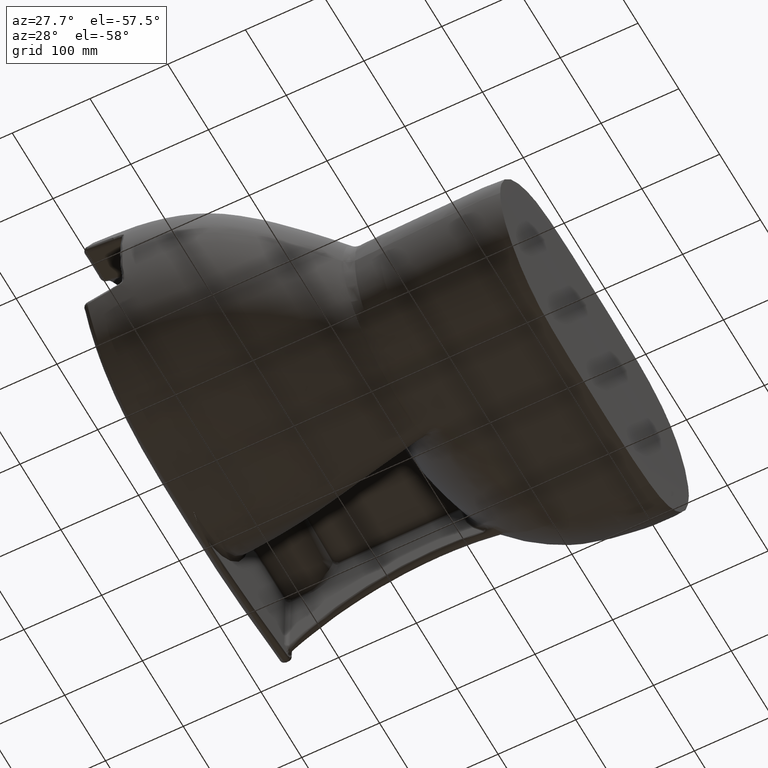
[diagram: clean part render]
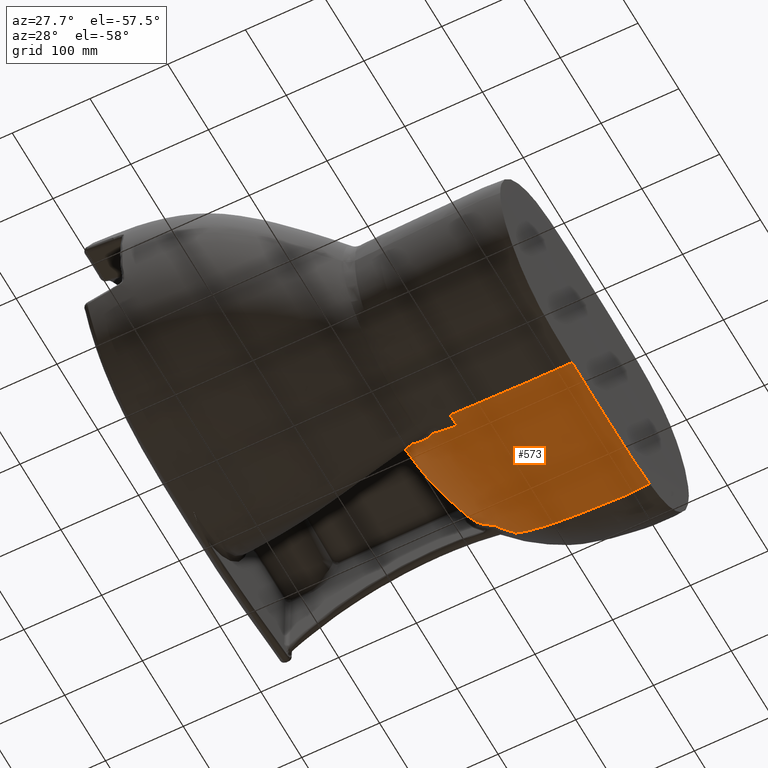
[diagram: same view with one face highlighted and labeled with its STEP entity id]
A machine part, auxiliary view. The second image highlights one B-rep face of the part: STEP entity #573.
In plain terms, the highlighted face is a freeform B-spline surface patch.
Its self-contained STEP definition (entity closure, byte-faithful):
#391=(
BOUNDED_CURVE()
B_SPLINE_CURVE(3,(#35795,#35796,#35797,#35798),.UNSPECIFIED.,.F.,.F.)
B_SPLINE_CURVE_WITH_KNOTS((4,4),(0.,1.),.UNSPECIFIED.)
CURVE()
GEOMETRIC_REPRESENTATION_ITEM()
RATIONAL_B_SPLINE_CURVE((1.,1.,1.,1.))
REPRESENTATION_ITEM('')
);
#573=ADVANCED_FACE('',(#1049),#817,.T.);
#817=B_SPLINE_SURFACE_WITH_KNOTS('',3,3,((#35799,#35800,#35801,#35802,#35803,
#35804,#35805,#35806,#35807,#35808,#35809,#35810,#35811,#35812,#35813,#35814,
#35815,#35816,#35817,#35818,#35819,#35820),(#35821,#35822,#35823,#35824,
#35825,#35826,#35827,#35828,#35829,#35830,#35831,#35832,#35833,#35834,#35835,
#35836,#35837,#35838,#35839,#35840,#35841,#35842),(#35843,#35844,#35845,
#35846,#35847,#35848,#35849,#35850,#35851,#35852,#35853,#35854,#35855,#35856,
#35857,#35858,#35859,#35860,#35861,#35862,#35863,#35864),(#35865,#35866,
#35867,#35868,#35869,#35870,#35871,#35872,#35873,#35874,#35875,#35876,#35877,
#35878,#35879,#35880,#35881,#35882,#35883,#35884,#35885,#35886),(#35887,
#35888,#35889,#35890,#35891,#35892,#35893,#35894,#35895,#35896,#35897,#35898,
#35899,#35900,#35901,#35902,#35903,#35904,#35905,#35906,#35907,#35908),
(#35909,#35910,#35911,#35912,#35913,#35914,#35915,#35916,#35917,#35918,
#35919,#35920,#35921,#35922,#35923,#35924,#35925,#35926,#35927,#35928,#35929,
#35930),(#35931,#35932,#35933,#35934,#35935,#35936,#35937,#35938,#35939,
#35940,#35941,#35942,#35943,#35944,#35945,#35946,#35947,#35948,#35949,#35950,
#35951,#35952),(#35953,#35954,#35955,#35956,#35957,#35958,#35959,#35960,
#35961,#35962,#35963,#35964,#35965,#35966,#35967,#35968,#35969,#35970,#35971,
#35972,#35973,#35974),(#35975,#35976,#35977,#35978,#35979,#35980,#35981,
#35982,#35983,#35984,#35985,#35986,#35987,#35988,#35989,#35990,#35991,#35992,
#35993,#35994,#35995,#35996),(#35997,#35998,#35999,#36000,#36001,#36002,
#36003,#36004,#36005,#36006,#36007,#36008,#36009,#36010,#36011,#36012,#36013,
#36014,#36015,#36016,#36017,#36018),(#36019,#36020,#36021,#36022,#36023,
#36024,#36025,#36026,#36027,#36028,#36029,#36030,#36031,#36032,#36033,#36034,
#36035,#36036,#36037,#36038,#36039,#36040),(#36041,#36042,#36043,#36044,
#36045,#36046,#36047,#36048,#36049,#36050,#36051,#36052,#36053,#36054,#36055,
#36056,#36057,#36058,#36059,#36060,#36061,#36062),(#36063,#36064,#36065,
#36066,#36067,#36068,#36069,#36070,#36071,#36072,#36073,#36074,#36075,#36076,
#36077,#36078,#36079,#36080,#36081,#36082,#36083,#36084),(#36085,#36086,
#36087,#36088,#36089,#36090,#36091,#36092,#36093,#36094,#36095,#36096,#36097,
#36098,#36099,#36100,#36101,#36102,#36103,#36104,#36105,#36106),(#36107,
#36108,#36109,#36110,#36111,#36112,#36113,#36114,#36115,#36116,#36117,#36118,
#36119,#36120,#36121,#36122,#36123,#36124,#36125,#36126,#36127,#36128),
(#36129,#36130,#36131,#36132,#36133,#36134,#36135,#36136,#36137,#36138,
#36139,#36140,#36141,#36142,#36143,#36144,#36145,#36146,#36147,#36148,#36149,
#36150),(#36151,#36152,#36153,#36154,#36155,#36156,#36157,#36158,#36159,
#36160,#36161,#36162,#36163,#36164,#36165,#36166,#36167,#36168,#36169,#36170,
#36171,#36172),(#36173,#36174,#36175,#36176,#36177,#36178,#36179,#36180,
#36181,#36182,#36183,#36184,#36185,#36186,#36187,#36188,#36189,#36190,#36191,
#36192,#36193,#36194),(#36195,#36196,#36197,#36198,#36199,#36200,#36201,
#36202,#36203,#36204,#36205,#36206,#36207,#36208,#36209,#36210,#36211,#36212,
#36213,#36214,#36215,#36216),(#36217,#36218,#36219,#36220,#36221,#36222,
#36223,#36224,#36225,#36226,#36227,#36228,#36229,#36230,#36231,#36232,#36233,
#36234,#36235,#36236,#36237,#36238),(#36239,#36240,#36241,#36242,#36243,
#36244,#36245,#36246,#36247,#36248,#36249,#36250,#36251,#36252,#36253,#36254,
#36255,#36256,#36257,#36258,#36259,#36260),(#36261,#36262,#36263,#36264,
#36265,#36266,#36267,#36268,#36269,#36270,#36271,#36272,#36273,#36274,#36275,
#36276,#36277,#36278,#36279,#36280,#36281,#36282),(#36283,#36284,#36285,
#36286,#36287,#36288,#36289,#36290,#36291,#36292,#36293,#36294,#36295,#36296,
#36297,#36298,#36299,#36300,#36301,#36302,#36303,#36304),(#36305,#36306,
#36307,#36308,#36309,#36310,#36311,#36312,#36313,#36314,#36315,#36316,#36317,
#36318,#36319,#36320,#36321,#36322,#36323,#36324,#36325,#36326),(#36327,
#36328,#36329,#36330,#36331,#36332,#36333,#36334,#36335,#36336,#36337,#36338,
#36339,#36340,#36341,#36342,#36343,#36344,#36345,#36346,#36347,#36348),
(#36349,#36350,#36351,#36352,#36353,#36354,#36355,#36356,#36357,#36358,
#36359,#36360,#36361,#36362,#36363,#36364,#36365,#36366,#36367,#36368,#36369,
#36370),(#36371,#36372,#36373,#36374,#36375,#36376,#36377,#36378,#36379,
#36380,#36381,#36382,#36383,#36384,#36385,#36386,#36387,#36388,#36389,#36390,
#36391,#36392),(#36393,#36394,#36395,#36396,#36397,#36398,#36399,#36400,
#36401,#36402,#36403,#36404,#36405,#36406,#36407,#36408,#36409,#36410,#36411,
#36412,#36413,#36414),(#36415,#36416,#36417,#36418,#36419,#36420,#36421,
#36422,#36423,#36424,#36425,#36426,#36427,#36428,#36429,#36430,#36431,#36432,
#36433,#36434,#36435,#36436),(#36437,#36438,#36439,#36440,#36441,#36442,
#36443,#36444,#36445,#36446,#36447,#36448,#36449,#36450,#36451,#36452,#36453,
#36454,#36455,#36456,#36457,#36458),(#36459,#36460,#36461,#36462,#36463,
#36464,#36465,#36466,#36467,#36468,#36469,#36470,#36471,#36472,#36473,#36474,
#36475,#36476,#36477,#36478,#36479,#36480),(#36481,#36482,#36483,#36484,
#36485,#36486,#36487,#36488,#36489,#36490,#36491,#36492,#36493,#36494,#36495,
#36496,#36497,#36498,#36499,#36500,#36501,#36502),(#36503,#36504,#36505,
#36506,#36507,#36508,#36509,#36510,#36511,#36512,#36513,#36514,#36515,#36516,
#36517,#36518,#36519,#36520,#36521,#36522,#36523,#36524),(#36525,#36526,
#36527,#36528,#36529,#36530,#36531,#36532,#36533,#36534,#36535,#36536,#36537,
#36538,#36539,#36540,#36541,#36542,#36543,#36544,#36545,#36546),(#36547,
#36548,#36549,#36550,#36551,#36552,#36553,#36554,#36555,#36556,#36557,#36558,
#36559,#36560,#36561,#36562,#36563,#36564,#36565,#36566,#36567,#36568)),
 .UNSPECIFIED.,.F.,.F.,.F.,(4,1,1,1,1,1,1,1,1,1,1,1,1,1,1,1,1,1,1,1,1,1,
1,1,1,1,1,1,1,1,1,1,4),(4,2,1,1,1,1,1,1,1,1,1,1,1,1,1,1,2,4),(0.,2.69529595739972E-006,
0.0313048487025693,0.0469559254058753,0.0626070021091813,0.0939091555157932,
0.109560232219099,0.125211308922405,0.156513462329017,0.187815615735629,
0.219117769142241,0.250419922548853,0.281722075955465,0.313024229362077,
0.375628536175301,0.438232842988525,0.45388391969183,0.469534996395136,
0.485186073098442,0.500837149801748,0.563441456614972,0.626045763428196,
0.68865007024142,0.719952223648032,0.751254377054644,0.782556530461256,
0.813858683867868,0.876462990681092,0.907765144087703,0.939067297494315,
0.954718374197621,0.970369450900927,1.),(0.,0.00592912738009182,0.129446870007045,
0.191205741320522,0.252964612633998,0.314723483947475,0.376482355260951,
0.438241226574428,0.453680944402797,0.469120662231166,0.500000097887905,
0.530879533544643,0.561758969201381,0.623517840514858,0.747035583141811,
0.870553325768764,0.994071068395717,1.),.UNSPECIFIED.);
#1049=FACE_OUTER_BOUND('',#1346,.T.);
#1346=EDGE_LOOP('',(#2233,#2234,#2235,#2236,#2237,#2238,#2239,#2240,#2241,
#2242,#2243,#2244,#2245,#2246,#2247,#2248,#2249,#2250,#2251,#2252,#2253,
#2254));
#2233=ORIENTED_EDGE('',*,*,#3820,.F.);
#2234=ORIENTED_EDGE('',*,*,#3696,.T.);
#2235=ORIENTED_EDGE('',*,*,#3665,.T.);
#2236=ORIENTED_EDGE('',*,*,#3666,.T.);
#2237=ORIENTED_EDGE('',*,*,#3668,.T.);
#2238=ORIENTED_EDGE('',*,*,#3670,.T.);
#2239=ORIENTED_EDGE('',*,*,#3671,.T.);
#2240=ORIENTED_EDGE('',*,*,#3676,.T.);
#2241=ORIENTED_EDGE('',*,*,#3677,.T.);
#2242=ORIENTED_EDGE('',*,*,#3722,.T.);
#2243=ORIENTED_EDGE('',*,*,#3682,.T.);
#2244=ORIENTED_EDGE('',*,*,#3686,.T.);
#2245=ORIENTED_EDGE('',*,*,#3688,.T.);
#2246=ORIENTED_EDGE('',*,*,#3690,.T.);
#2247=ORIENTED_EDGE('',*,*,#3691,.T.);
#2248=ORIENTED_EDGE('',*,*,#3711,.T.);
#2249=ORIENTED_EDGE('',*,*,#3710,.T.);
#2250=ORIENTED_EDGE('',*,*,#3709,.T.);
#2251=ORIENTED_EDGE('',*,*,#3706,.T.);
#2252=ORIENTED_EDGE('',*,*,#3705,.T.);
#2253=ORIENTED_EDGE('',*,*,#3693,.T.);
#2254=ORIENTED_EDGE('',*,*,#3821,.F.);
#3040=VERTEX_POINT('',#23099);
#3042=VERTEX_POINT('',#23127);
#3047=VERTEX_POINT('',#23292);
#3076=VERTEX_POINT('',#25353);
#3078=VERTEX_POINT('',#25899);
#3130=VERTEX_POINT('',#29516);
#3131=VERTEX_POINT('',#29599);
#3132=VERTEX_POINT('',#29606);
#3136=VERTEX_POINT('',#29706);
#3139=VERTEX_POINT('',#29816);
#3142=VERTEX_POINT('',#30384);
#3143=VERTEX_POINT('',#30500);
#3144=VERTEX_POINT('',#30746);
#3145=VERTEX_POINT('',#31109);
#3146=VERTEX_POINT('',#31273);
#3147=VERTEX_POINT('',#31274);
#3149=VERTEX_POINT('',#31364);
#3155=VERTEX_POINT('',#31540);
#3156=VERTEX_POINT('',#31545);
#3158=VERTEX_POINT('',#31680);
#3159=VERTEX_POINT('',#31685);
#3224=VERTEX_POINT('',#35794);
#3665=EDGE_CURVE('',#3047,#3040,#4369,.T.);
#3666=EDGE_CURVE('',#3040,#3130,#4370,.T.);
#3668=EDGE_CURVE('',#3130,#3131,#4372,.T.);
#3670=EDGE_CURVE('',#3131,#3132,#4374,.T.);
#3671=EDGE_CURVE('',#3132,#3042,#4375,.T.);
#3676=EDGE_CURVE('',#3042,#3136,#4378,.T.);
#3677=EDGE_CURVE('',#3136,#3078,#4379,.T.);
#3682=EDGE_CURVE('',#3076,#3139,#4384,.T.);
#3686=EDGE_CURVE('',#3139,#3142,#4388,.T.);
#3688=EDGE_CURVE('',#3142,#3143,#4390,.T.);
#3690=EDGE_CURVE('',#3143,#3144,#4392,.T.);
#3691=EDGE_CURVE('',#3144,#3145,#4393,.T.);
#3693=EDGE_CURVE('',#3146,#3147,#4395,.T.);
#3696=EDGE_CURVE('',#3149,#3047,#4397,.T.);
#3705=EDGE_CURVE('',#3155,#3146,#4404,.T.);
#3706=EDGE_CURVE('',#3156,#3155,#4405,.T.);
#3709=EDGE_CURVE('',#3158,#3156,#4408,.T.);
#3710=EDGE_CURVE('',#3159,#3158,#4409,.T.);
#3711=EDGE_CURVE('',#3145,#3159,#4410,.T.);
#3722=EDGE_CURVE('',#3078,#3076,#4418,.T.);
#3820=EDGE_CURVE('',#3149,#3224,#4484,.T.);
#3821=EDGE_CURVE('',#3224,#3147,#391,.T.);
#4369=B_SPLINE_CURVE_WITH_KNOTS('',3,(#29366,#29367,#29368,#29369,#29370,
#29371,#29372,#29373,#29374,#29375,#29376,#29377,#29378,#29379),
 .UNSPECIFIED.,.F.,.F.,(4,2,2,2,2,2,4),(0.,0.249999999999998,0.374999999999997,
0.437499999999997,0.499999999999996,0.749999999999998,1.),.UNSPECIFIED.);
#4370=B_SPLINE_CURVE_WITH_KNOTS('',3,(#29512,#29513,#29514,#29515),
 .UNSPECIFIED.,.F.,.F.,(4,4),(0.,1.),.UNSPECIFIED.);
#4372=B_SPLINE_CURVE_WITH_KNOTS('',3,(#29595,#29596,#29597,#29598),
 .UNSPECIFIED.,.F.,.F.,(4,4),(0.,1.),.UNSPECIFIED.);
#4374=B_SPLINE_CURVE_WITH_KNOTS('',3,(#29607,#29608,#29609,#29610),
 .UNSPECIFIED.,.F.,.F.,(4,4),(0.,1.),.UNSPECIFIED.);
#4375=B_SPLINE_CURVE_WITH_KNOTS('',3,(#29659,#29660,#29661,#29662),
 .UNSPECIFIED.,.F.,.F.,(4,4),(0.,1.),.UNSPECIFIED.);
#4378=B_SPLINE_CURVE_WITH_KNOTS('',3,(#29707,#29708,#29709,#29710,#29711,
#29712,#29713,#29714,#29715,#29716,#29717,#29718,#29719,#29720,#29721,#29722,
#29723,#29724,#29725,#29726,#29727,#29728,#29729,#29730,#29731,#29732,#29733,
#29734,#29735,#29736,#29737,#29738,#29739,#29740,#29741,#29742,#29743,#29744,
#29745,#29746,#29747,#29748,#29749),.UNSPECIFIED.,.F.,.F.,(4,2,2,2,1,2,
2,2,2,2,2,1,1,1,2,2,2,2,2,2,1,2,2,4),(0.,0.250000000000054,0.37500000000008,
0.437500000000095,0.468750000000101,0.484375000000104,0.500000000000106,
0.625000000000119,0.687500000000128,0.718750000000134,0.73437500000014,
0.74218750000014,0.746093750000138,0.748046875000137,0.749023437500134,
0.750000000000131,0.812499999999967,0.843749999999884,0.859374999999842,
0.867187499999815,0.871093749999794,0.873046874999795,0.874999999999797,
1.),.UNSPECIFIED.);
#4379=B_SPLINE_CURVE_WITH_KNOTS('',3,(#29751,#29752,#29753,#29754),
 .UNSPECIFIED.,.F.,.F.,(4,4),(0.,1.),.UNSPECIFIED.);
#4384=B_SPLINE_CURVE_WITH_KNOTS('',3,(#29817,#29818,#29819,#29820,#29821,
#29822,#29823,#29824,#29825,#29826,#29827,#29828,#29829,#29830,#29831,#29832,
#29833,#29834,#29835,#29836),.UNSPECIFIED.,.F.,.F.,(4,2,2,2,2,2,2,2,2,4),
(0.,0.125,0.1875,0.25,0.375,0.5,0.625,0.75,0.875,1.),.UNSPECIFIED.);
#4388=B_SPLINE_CURVE_WITH_KNOTS('',3,(#30385,#30386,#30387,#30388),
 .UNSPECIFIED.,.F.,.F.,(4,4),(0.,1.),.UNSPECIFIED.);
#4390=B_SPLINE_CURVE_WITH_KNOTS('',3,(#30501,#30502,#30503,#30504),
 .UNSPECIFIED.,.F.,.F.,(4,4),(0.,1.),.UNSPECIFIED.);
#4392=B_SPLINE_CURVE_WITH_KNOTS('',3,(#30747,#30748,#30749,#30750),
 .UNSPECIFIED.,.F.,.F.,(4,4),(0.,1.),.UNSPECIFIED.);
#4393=B_SPLINE_CURVE_WITH_KNOTS('',3,(#31087,#31088,#31089,#31090,#31091,
#31092,#31093,#31094,#31095,#31096,#31097,#31098,#31099,#31100,#31101,#31102,
#31103,#31104,#31105,#31106,#31107,#31108),.UNSPECIFIED.,.F.,.F.,(4,2,2,
2,2,2,2,2,2,2,4),(0.,0.015625,0.03125,0.0624999999999999,0.125,0.25,0.5,
0.625,0.75,0.875,1.),.UNSPECIFIED.);
#4395=B_SPLINE_CURVE_WITH_KNOTS('',3,(#31253,#31254,#31255,#31256,#31257,
#31258,#31259,#31260,#31261,#31262,#31263,#31264,#31265,#31266,#31267,#31268,
#31269,#31270,#31271,#31272),.UNSPECIFIED.,.F.,.F.,(4,2,2,2,2,2,1,1,2,2,
4),(0.,0.12499999999999,0.187499999999988,0.218749999999986,0.234374999999986,
0.249999999999986,0.374999999999991,0.43749999999999,0.46874999999999,0.49999999999999,
1.),.UNSPECIFIED.);
#4397=B_SPLINE_CURVE_WITH_KNOTS('',3,(#31334,#31335,#31336,#31337,#31338,
#31339,#31340,#31341,#31342,#31343,#31344,#31345,#31346,#31347,#31348,#31349,
#31350,#31351,#31352,#31353,#31354,#31355,#31356,#31357,#31358,#31359,#31360,
#31361,#31362,#31363),.UNSPECIFIED.,.F.,.F.,(4,2,2,2,2,2,2,2,2,2,2,2,2,
2,4),(0.,0.124999999999997,0.187499999999995,0.203124999999995,0.210937499999995,
0.218749999999995,0.249999999999996,0.374999999999997,0.437499999999998,
0.468749999999998,0.484374999999998,0.492187499999998,0.499999999999998,
0.749999999999999,1.),.UNSPECIFIED.);
#4404=B_SPLINE_CURVE_WITH_KNOTS('',3,(#31534,#31535,#31536,#31537,#31538,
#31539),.UNSPECIFIED.,.F.,.F.,(4,2,4),(0.,0.5,1.),.UNSPECIFIED.);
#4405=B_SPLINE_CURVE_WITH_KNOTS('',3,(#31541,#31542,#31543,#31544),
 .UNSPECIFIED.,.F.,.F.,(4,4),(0.,1.),.UNSPECIFIED.);
#4408=B_SPLINE_CURVE_WITH_KNOTS('',3,(#31676,#31677,#31678,#31679),
 .UNSPECIFIED.,.F.,.F.,(4,4),(0.,1.),.UNSPECIFIED.);
#4409=B_SPLINE_CURVE_WITH_KNOTS('',3,(#31681,#31682,#31683,#31684),
 .UNSPECIFIED.,.F.,.F.,(4,4),(0.,1.),.UNSPECIFIED.);
#4410=B_SPLINE_CURVE_WITH_KNOTS('',3,(#31686,#31687,#31688,#31689,#31690,
#31691,#31692,#31693,#31694,#31695,#31696,#31697,#31698,#31699,#31700),
 .UNSPECIFIED.,.F.,.F.,(4,1,1,1,1,1,1,1,1,1,1,1,4),(0.,0.0601588004681042,
0.100640830251247,0.14112286003439,0.222086919600676,0.303050979166959,
0.464979098299531,0.545943157865817,0.626907217432103,0.707871276998389,
0.788835336564675,0.950763455697246,1.),.UNSPECIFIED.);
#4418=B_SPLINE_CURVE_WITH_KNOTS('',3,(#32778,#32779,#32780,#32781,#32782,
#32783),.UNSPECIFIED.,.F.,.F.,(4,2,4),(0.,0.999826036956275,1.),
 .UNSPECIFIED.);
#4484=B_SPLINE_CURVE_WITH_KNOTS('',3,(#35778,#35779,#35780,#35781,#35782,
#35783,#35784,#35785,#35786,#35787,#35788,#35789,#35790,#35791,#35792,#35793),
 .UNSPECIFIED.,.F.,.F.,(4,2,2,2,2,2,2,4),(0.,0.125,0.25,0.375,0.499999999999999,
0.749999999999999,0.875,1.),.UNSPECIFIED.);
#23099=CARTESIAN_POINT('',(-189.296443436505,-17.8249144784263,-890.449250161374));
#23127=CARTESIAN_POINT('',(-187.830083627952,-1.35257541668294,-885.378313322443));
#23292=CARTESIAN_POINT('',(-232.47368738606,-20.0024757136374,-817.248328237267));
#25353=CARTESIAN_POINT('',(-222.718824431025,0.259401134505902,-807.904962848657));
#25899=CARTESIAN_POINT('',(-222.88426220293,-0.00447027724423187,-807.904962913795));
#29366=CARTESIAN_POINT('',(-232.472296391965,-20.0030844914909,-817.248094960772));
#29367=CARTESIAN_POINT('',(-230.893488626043,-19.7150403840427,-826.023565478697));
#29368=CARTESIAN_POINT('',(-228.895204795993,-19.4760716577695,-833.842490597829));
#29369=CARTESIAN_POINT('',(-225.424730110019,-19.1242780742411,-844.174523818816));
#29370=CARTESIAN_POINT('',(-224.145334896573,-19.0232877594549,-847.372530809562));
#29371=CARTESIAN_POINT('',(-222.124252866668,-18.8895909238042,-851.814648067658));
#29372=CARTESIAN_POINT('',(-221.434124960111,-18.8478351076173,-853.236477782883));
#29373=CARTESIAN_POINT('',(-220.037445297889,-18.7679156546577,-855.967174957154));
#29374=CARTESIAN_POINT('',(-219.316054318377,-18.7289491039003,-857.302538171946));
#29375=CARTESIAN_POINT('',(-215.851463261184,-18.5477766721366,-863.444019185199));
#29376=CARTESIAN_POINT('',(-212.263862203149,-18.3976176163239,-868.82663738976));
#29377=CARTESIAN_POINT('',(-202.684249942417,-18.1090076235298,-879.763046987892));
#29378=CARTESIAN_POINT('',(-196.745724187156,-17.9628291691335,-885.350413056943));
#29379=CARTESIAN_POINT('',(-189.296442146999,-17.8249150112663,-890.449248291728));
#29512=CARTESIAN_POINT('',(-189.296442146989,-17.8249150112741,-890.449248291737));
#29513=CARTESIAN_POINT('',(-184.682738873837,-10.4962612618135,-891.542833989022));
#29514=CARTESIAN_POINT('',(-179.046542053041,-5.13256850082646,-893.071699196391));
#29515=CARTESIAN_POINT('',(-171.70544433936,-1.53074724564746,-895.345317002544));
#29516=CARTESIAN_POINT('',(-171.705444881607,-1.53074547053859,-895.345316051335));
#29595=CARTESIAN_POINT('',(-171.705444341619,-1.53074724675652,-895.345317001844));
#29596=CARTESIAN_POINT('',(-173.357150788153,-1.51568155698356,-894.514352019136));
#29597=CARTESIAN_POINT('',(-174.977213425796,-1.50062733384049,-893.648562055245));
#29598=CARTESIAN_POINT('',(-176.564607718852,-1.48542287781211,-892.748850191332));
#29599=CARTESIAN_POINT('',(-176.569166698965,-1.48536832140594,-892.746285285388));
#29606=CARTESIAN_POINT('',(-185.93187482027,-1.37737190131328,-886.77100359234));
#29607=CARTESIAN_POINT('',(-176.564607718852,-1.48542287781211,-892.748850191332));
#29608=CARTESIAN_POINT('',(-179.828390266626,-1.44910546801244,-890.896906937432));
#29609=CARTESIAN_POINT('',(-182.955483457355,-1.41174504342765,-888.902021055838));
#29610=CARTESIAN_POINT('',(-185.931017305909,-1.3736421277615,-886.769879254742));
#29659=CARTESIAN_POINT('',(-185.931017305909,-1.3736421277615,-886.769879254742));
#29660=CARTESIAN_POINT('',(-186.57054116128,-1.3648821653915,-886.311358229584));
#29661=CARTESIAN_POINT('',(-187.202964709083,-1.35611612294839,-885.846457693835));
#29662=CARTESIAN_POINT('',(-187.82805345764,-1.34737198097005,-885.375201151949));
#29706=CARTESIAN_POINT('',(-222.829426937587,-0.092627071850432,-812.955467360586));
#29707=CARTESIAN_POINT('',(-187.82805345764,-1.34737198097005,-885.375201151949));
#29708=CARTESIAN_POINT('',(-193.416730728697,-1.26829319799702,-881.161448169733));
#29709=CARTESIAN_POINT('',(-198.429359101721,-1.18866977147612,-876.374029796946));
#29710=CARTESIAN_POINT('',(-204.979551863596,-1.05829727731858,-868.519370519263));
#29711=CARTESIAN_POINT('',(-207.00546848928,-1.01233503876229,-865.792946282129));
#29712=CARTESIAN_POINT('',(-209.758982274943,-0.941872451341492,-861.546654685735));
#29713=CARTESIAN_POINT('',(-210.627695133689,-0.918281597702938,-860.104319734432));
#29714=CARTESIAN_POINT('',(-211.853155532473,-0.882494646451748,-857.902603561303));
#29715=CARTESIAN_POINT('',(-212.447150575272,-0.864409200883442,-856.792551495207));
#29716=CARTESIAN_POINT('',(-213.014857565875,-0.845637342685997,-855.670493187471));
#29717=CARTESIAN_POINT('',(-213.387691142554,-0.832925454606199,-854.919986924221));
#29718=CARTESIAN_POINT('',(-213.547391858162,-0.827339620951188,-854.593389187724));
#29719=CARTESIAN_POINT('',(-215.390396858409,-0.760339707984317,-850.745806321119));
#29720=CARTESIAN_POINT('',(-216.719612061377,-0.693299355866927,-847.439857753398));
#29721=CARTESIAN_POINT('',(-218.305253432239,-0.60640067570831,-842.700639074794));
#29722=CARTESIAN_POINT('',(-218.766401758523,-0.579389371665952,-841.157434313771));
#29723=CARTESIAN_POINT('',(-219.368408697796,-0.542617700710983,-838.902948199012));
#29724=CARTESIAN_POINT('',(-219.553916534957,-0.531036280568502,-838.161446743005));
#29725=CARTESIAN_POINT('',(-219.812009933461,-0.514427391225042,-837.065032618652));
#29726=CARTESIAN_POINT('',(-219.894758808151,-0.508996642468779,-836.702218175735));
#29727=CARTESIAN_POINT('',(-220.014507892681,-0.50091361837393,-836.162133491195));
#29728=CARTESIAN_POINT('',(-220.073288244802,-0.496888027085403,-835.893125191111));
#29729=CARTESIAN_POINT('',(-220.140064045507,-0.492200048697455,-835.581122803666));
#29730=CARTESIAN_POINT('',(-220.173015341228,-0.489855891461477,-835.425585495779));
#29731=CARTESIAN_POINT('',(-220.187045225403,-0.488850972272929,-835.359026449625));
#29732=CARTESIAN_POINT('',(-220.196378175684,-0.488180936985179,-835.314675973572));
#29733=CARTESIAN_POINT('',(-220.192628522978,-0.488452172762236,-835.332590951826));
#29734=CARTESIAN_POINT('',(-221.041023110504,-0.427259990253579,-831.28750441948));
#29735=CARTESIAN_POINT('',(-221.480482635762,-0.370205175279876,-828.242740471837));
#29736=CARTESIAN_POINT('',(-221.901599740567,-0.311279797598816,-825.119388160303));
#29737=CARTESIAN_POINT('',(-221.99722082199,-0.296150533341917,-824.317740671659));
#29738=CARTESIAN_POINT('',(-222.094114048092,-0.280243739432989,-823.475238936497));
#29739=CARTESIAN_POINT('',(-222.118542759746,-0.276055886993092,-823.254393889185));
#29740=CARTESIAN_POINT('',(-222.144858996482,-0.271385114973385,-823.013156928923));
#29741=CARTESIAN_POINT('',(-222.151902013159,-0.270096606921801,-822.94774942352));
#29742=CARTESIAN_POINT('',(-222.159983556646,-0.268560693661478,-822.872148681554));
#29743=CARTESIAN_POINT('',(-222.163402784618,-0.267891994005906,-822.8399759112));
#29744=CARTESIAN_POINT('',(-222.165903246054,-0.2673714867388,-822.816244914384));
#29745=CARTESIAN_POINT('',(-222.167367060415,-0.267057362402414,-822.802300224812));
#29746=CARTESIAN_POINT('',(-222.163206058537,-0.268041255560544,-822.84240664175));
#29747=CARTESIAN_POINT('',(-222.509042929122,-0.186874343591051,-819.511993079229));
#29748=CARTESIAN_POINT('',(-222.72320285024,-0.131359834890758,-816.23342299933));
#29749=CARTESIAN_POINT('',(-222.829426936873,-0.0926270722681942,-812.955467384952));
#29751=CARTESIAN_POINT('',(-222.829426940441,-0.0926270701794748,-812.955467263121));
#29752=CARTESIAN_POINT('',(-222.878753781193,-0.0637512152564042,-811.271161405621));
#29753=CARTESIAN_POINT('',(-222.896469811009,-0.0347030118069517,-809.587402800492));
#29754=CARTESIAN_POINT('',(-222.884262203518,-0.00447028010638495,-807.904968140917));
#29816=CARTESIAN_POINT('',(-61.3305709255067,0.259474251093405,-915.462741395333));
#29817=CARTESIAN_POINT('',(-222.718860973935,0.259424077906246,-807.904968009571));
#29818=CARTESIAN_POINT('',(-222.705397986725,0.259181050696003,-815.877818586838));
#29819=CARTESIAN_POINT('',(-222.001731310849,0.251212035030198,-823.836250647421));
#29820=CARTESIAN_POINT('',(-219.824796277718,0.259606903178828,-835.684207165235));
#29821=CARTESIAN_POINT('',(-218.89800019034,0.273737967587596,-839.616352354939));
#29822=CARTESIAN_POINT('',(-216.351123873401,0.264285436218507,-847.322521137863));
#29823=CARTESIAN_POINT('',(-214.771762344428,0.250934500088714,-851.10582027313));
#29824=CARTESIAN_POINT('',(-209.25089008181,0.251392123829914,-862.181387710478));
#29825=CARTESIAN_POINT('',(-204.28567684052,0.25707851047263,-869.073854306246));
#29826=CARTESIAN_POINT('',(-192.322456466372,0.267008781679192,-881.513708281299));
#29827=CARTESIAN_POINT('',(-185.228022720311,0.256658651723972,-886.970929520098));
#29828=CARTESIAN_POINT('',(-169.372003898329,0.258717047352034,-896.202489275644));
#29829=CARTESIAN_POINT('',(-160.545983149053,0.262592352983768,-899.938105127891));
#29830=CARTESIAN_POINT('',(-141.768903301089,0.259482440439762,-905.749752948805));
#29831=CARTESIAN_POINT('',(-131.865315790695,0.254930029302693,-907.845872474651));
#29832=CARTESIAN_POINT('',(-111.732560143569,0.251823194728734,-911.057228377561));
#29833=CARTESIAN_POINT('',(-101.517001936145,0.253155585124647,-912.193894624584));
#29834=CARTESIAN_POINT('',(-81.2928915464738,0.257273301068924,-914.044980378193));
#29835=CARTESIAN_POINT('',(-71.2717376904344,0.259448979432885,-914.718871863656));
#29836=CARTESIAN_POINT('',(-61.330633684826,0.259570311250168,-915.463570010786));
#30384=CARTESIAN_POINT('',(-32.5570768195825,0.259485410146986,-917.137687926939));
#30385=CARTESIAN_POINT('',(-61.3306336848259,0.259570311257963,-915.463570010785));
#30386=CARTESIAN_POINT('',(-51.7013339431453,0.259785612332583,-916.184899251227));
#30387=CARTESIAN_POINT('',(-42.1333478040512,0.259637588564099,-917.143317340859));
#30388=CARTESIAN_POINT('',(-32.5570774209526,0.259592634114093,-917.138625461608));
#30500=CARTESIAN_POINT('',(-10.4515384107355,0.25849467991742,-915.966752704918));
#30501=CARTESIAN_POINT('',(-32.5570760085957,0.259592623142343,-917.13862546217));
#30502=CARTESIAN_POINT('',(-25.1766082049619,0.25898290377838,-917.135075118548));
#30503=CARTESIAN_POINT('',(-17.8069281439721,0.258330466668946,-916.645697291528));
#30504=CARTESIAN_POINT('',(-10.4520672153245,0.257644415507822,-915.961096892972));
#30746=CARTESIAN_POINT('',(-0.0885966638408369,0.260855605747395,-914.991126266906));
#30747=CARTESIAN_POINT('',(-10.452061179703,0.257582311759422,-915.961106027731));
#30748=CARTESIAN_POINT('',(-6.99843293535141,0.257965478026181,-915.639528100447));
#30749=CARTESIAN_POINT('',(-3.54164777136665,0.258336692846189,-915.319178284235));
#30750=CARTESIAN_POINT('',(-0.0805475908090794,0.258694103464429,-914.990463345695));
#31087=CARTESIAN_POINT('',(-0.0805475908090794,0.258694103464429,-914.990463345695));
#31088=CARTESIAN_POINT('',(-0.0818619239578027,0.103167132839122,-915.020141438894));
#31089=CARTESIAN_POINT('',(-0.0820413943696389,0.0742769037382043,-915.025601548539));
#31090=CARTESIAN_POINT('',(-0.0834479364494126,-0.132807524662804,-915.064847665839));
#31091=CARTESIAN_POINT('',(-0.0841762654585105,-0.25039611726239,-915.087063359134));
#31092=CARTESIAN_POINT('',(-0.0864357531258411,-0.645330807876345,-915.161319263304));
#31093=CARTESIAN_POINT('',(-0.0880414792647178,-0.96484381593463,-915.220980702501));
#31094=CARTESIAN_POINT('',(-0.0931490909502004,-2.09236688134717,-915.428626962215));
#31095=CARTESIAN_POINT('',(-0.0969425263110958,-3.06933823119661,-915.605446241548));
#31096=CARTESIAN_POINT('',(-0.109386522291427,-6.67964442948383,-916.229843637));
#31097=CARTESIAN_POINT('',(-0.119120900171609,-9.99248937271568,-916.77277590078));
#31098=CARTESIAN_POINT('',(-0.151149770503908,-22.6827706279923,-918.533265073044));
#31099=CARTESIAN_POINT('',(-0.176671373984123,-34.8197512097923,-919.867948440711));
#31100=CARTESIAN_POINT('',(-0.208790349917826,-58.5704315937311,-921.036775530862));
#31101=CARTESIAN_POINT('',(-0.218310942111026,-67.4100031029074,-921.291571096743));
#31102=CARTESIAN_POINT('',(-0.231869110299663,-86.9167380963474,-921.790824165882));
#31103=CARTESIAN_POINT('',(-0.236077045799947,-97.585365727505,-921.997408568146));
#31104=CARTESIAN_POINT('',(-0.236032245431079,-120.753481011445,-922.296512250118));
#31105=CARTESIAN_POINT('',(-0.234509699575561,-133.251536429197,-922.45900086271));
#31106=CARTESIAN_POINT('',(-0.230301256635015,-160.078196645582,-922.565504989919));
#31107=CARTESIAN_POINT('',(-0.22720475817913,-174.407088917302,-922.50116951434));
#31108=CARTESIAN_POINT('',(-0.222952709290948,-189.641977585913,-922.069786270174));
#31109=CARTESIAN_POINT('',(-0.22441593461656,-189.643974961821,-922.069595809348));
#31253=CARTESIAN_POINT('',(-176.869362380351,-173.045940059047,-915.499546329581));
#31254=CARTESIAN_POINT('',(-177.763342608725,-173.028302477784,-915.28136518747));
#31255=CARTESIAN_POINT('',(-178.495167141254,-173.016784206233,-915.090139701182));
#31256=CARTESIAN_POINT('',(-179.350335998695,-173.008722687969,-914.861194560676));
#31257=CARTESIAN_POINT('',(-179.594970464909,-173.007571344477,-914.794450893105));
#31258=CARTESIAN_POINT('',(-179.901388771114,-173.008151171547,-914.710165426528));
#31259=CARTESIAN_POINT('',(-179.993439211553,-173.008728909642,-914.684703618332));
#31260=CARTESIAN_POINT('',(-180.11639207404,-173.010172492722,-914.650599852372));
#31261=CARTESIAN_POINT('',(-180.15485587865,-173.010749848992,-914.639913106152));
#31262=CARTESIAN_POINT('',(-180.226744078199,-173.012096923359,-914.619921327153));
#31263=CARTESIAN_POINT('',(-180.220378269143,-173.011751789234,-914.621696082183));
#31264=CARTESIAN_POINT('',(-180.856638542996,-173.029578693833,-914.444526128379));
#31265=CARTESIAN_POINT('',(-181.704522382547,-173.047714960067,-914.199833299941));
#31266=CARTESIAN_POINT('',(-182.692564464545,-173.059010149359,-913.899367215708));
#31267=CARTESIAN_POINT('',(-183.115726116852,-173.061736598369,-913.767365295798));
#31268=CARTESIAN_POINT('',(-183.397766410749,-173.063084300426,-913.678644045671));
#31269=CARTESIAN_POINT('',(-183.502666237348,-173.06347098766,-913.645465358921));
#31270=CARTESIAN_POINT('',(-186.512298264579,-173.067824361469,-912.682865361609));
#31271=CARTESIAN_POINT('',(-188.686385780444,-172.786835223268,-911.825556719819));
#31272=CARTESIAN_POINT('',(-190.214880624957,-172.220582122089,-911.157186618116));
#31273=CARTESIAN_POINT('',(-176.870997913334,-173.0850646745,-915.50249271337));
#31274=CARTESIAN_POINT('',(-190.214880620631,-172.220582123133,-911.157186607338));
#31334=CARTESIAN_POINT('',(-252.190291859832,-138.916596544301,-817.428024041807));
#31335=CARTESIAN_POINT('',(-252.135593737539,-133.289703137749,-817.363044510108));
#31336=CARTESIAN_POINT('',(-252.066083901411,-127.997880049238,-817.302032025371));
#31337=CARTESIAN_POINT('',(-251.958196514937,-120.562816835832,-817.215908869599));
#31338=CARTESIAN_POINT('',(-251.921608730878,-118.168239371336,-817.188109642075));
#31339=CARTESIAN_POINT('',(-251.876027789256,-115.279747096022,-817.154495008817));
#31340=CARTESIAN_POINT('',(-251.866856025853,-114.707285992685,-817.147828728808));
#31341=CARTESIAN_POINT('',(-251.852722361702,-113.856454865717,-817.137913628183));
#31342=CARTESIAN_POINT('',(-251.847948825158,-113.574154572674,-817.134622650481));
#31343=CARTESIAN_POINT('',(-251.838232514353,-113.012174838493,-817.128068728921));
#31344=CARTESIAN_POINT('',(-251.832216474952,-112.670563205209,-817.124077801574));
#31345=CARTESIAN_POINT('',(-251.798780144555,-110.845712774254,-817.10297441346));
#31346=CARTESIAN_POINT('',(-251.768614998468,-109.408016119874,-817.086867646079));
#31347=CARTESIAN_POINT('',(-251.586559158148,-102.330677344214,-817.010100892749));
#31348=CARTESIAN_POINT('',(-251.302044565015,-97.0255902354956,-816.960662924939));
#31349=CARTESIAN_POINT('',(-250.704254996928,-89.6099210397208,-816.903328415869));
#31350=CARTESIAN_POINT('',(-250.477428162229,-87.2285928182762,-816.887036695411));
#31351=CARTESIAN_POINT('',(-250.003027230565,-83.8062473505219,-816.866817723643));
#31352=CARTESIAN_POINT('',(-249.839303225885,-82.6883796242092,-816.860781902344));
#31353=CARTESIAN_POINT('',(-249.611396996291,-81.0430051157748,-816.852788703966));
#31354=CARTESIAN_POINT('',(-249.536462922125,-80.5000124035642,-816.850301100428));
#31355=CARTESIAN_POINT('',(-249.422830854869,-79.6940704559165,-816.846835837553));
#31356=CARTESIAN_POINT('',(-249.384738643344,-79.4268487570904,-816.845725109368));
#31357=CARTESIAN_POINT('',(-249.308129216422,-78.8952597432834,-816.843592558135));
#31358=CARTESIAN_POINT('',(-249.263445850658,-78.5890123447612,-816.842415079696));
#31359=CARTESIAN_POINT('',(-248.189172782852,-71.2940500440516,-816.815301856229));
#31360=CARTESIAN_POINT('',(-246.461309923015,-61.3116619779601,-816.786072701366));
#31361=CARTESIAN_POINT('',(-239.192475053715,-36.0027436918277,-816.968403371548));
#31362=CARTESIAN_POINT('',(-235.352778263792,-26.5604047652061,-817.128058938988));
#31363=CARTESIAN_POINT('',(-232.472296391965,-20.0030844914907,-817.248094960772));
#31364=CARTESIAN_POINT('',(-252.190561116696,-138.916593544536,-817.42805477906));
#31534=CARTESIAN_POINT('',(-157.078588420913,-173.003757849101,-918.22233226386));
#31535=CARTESIAN_POINT('',(-160.335604885005,-173.004767795946,-918.072542182695));
#31536=CARTESIAN_POINT('',(-163.623982407923,-173.005556351479,-917.829485032402));
#31537=CARTESIAN_POINT('',(-170.233697076436,-173.006680711264,-916.924677017664));
#31538=CARTESIAN_POINT('',(-173.554005436679,-173.007016910884,-916.300545411424));
#31539=CARTESIAN_POINT('',(-176.866869903973,-173.007057075542,-915.497088145044));
#31540=CARTESIAN_POINT('',(-157.078371666397,-173.003640039636,-918.222336343137));
#31541=CARTESIAN_POINT('',(-157.078588199054,-189.597565657079,-918.982597303805));
#31542=CARTESIAN_POINT('',(-157.078352559815,-184.064959432937,-918.754728533033));
#31543=CARTESIAN_POINT('',(-157.078352187679,-178.533795710951,-918.49894032877));
#31544=CARTESIAN_POINT('',(-157.078588420913,-173.003757849101,-918.22233226386));
#31545=CARTESIAN_POINT('',(-157.078588199413,-189.597574160315,-918.979961839349));
#31676=CARTESIAN_POINT('',(-118.193834022365,-189.597559902739,-920.057827743211));
#31677=CARTESIAN_POINT('',(-130.854391225599,-189.597565366707,-919.682187474828));
#31678=CARTESIAN_POINT('',(-143.647158036827,-189.597561646849,-919.252007517889));
#31679=CARTESIAN_POINT('',(-157.078588199054,-189.597565657079,-918.982597303805));
#31680=CARTESIAN_POINT('',(-118.193834022368,-189.597552402407,-920.057827743233));
#31681=CARTESIAN_POINT('',(-116.02171292378,-189.597541644095,-920.122118176014));
#31682=CARTESIAN_POINT('',(-116.74537663197,-189.597542942542,-920.100752904724));
#31683=CARTESIAN_POINT('',(-117.469385879401,-189.59754401111,-920.079322212157));
#31684=CARTESIAN_POINT('',(-118.19383402231,-189.597544902074,-920.057827741198));
#31685=CARTESIAN_POINT('',(-116.021696534723,-189.597550662185,-920.121553179405));
#31686=CARTESIAN_POINT('',(-0.222952709838562,-189.641977585913,-922.069786270194));
#31687=CARTESIAN_POINT('',(-2.5691497959744,-189.634494505816,-922.155693717133));
#31688=CARTESIAN_POINT('',(-6.49913784783289,-189.623701264835,-922.286044162773));
#31689=CARTESIAN_POINT('',(-12.0184052141664,-189.61228366904,-922.424762104649));
#31690=CARTESIAN_POINT('',(-18.3570993254545,-189.602407408069,-922.535238802341));
#31691=CARTESIAN_POINT('',(-26.2876580515085,-189.595643740855,-922.567986065401));
#31692=CARTESIAN_POINT('',(-38.9706578566786,-189.594748582527,-922.357722671493));
#31693=CARTESIAN_POINT('',(-51.6201128782016,-189.597461975221,-921.96375258694));
#31694=CARTESIAN_POINT('',(-64.1944705717767,-189.598082263564,-921.589874252569));
#31695=CARTESIAN_POINT('',(-73.576241489848,-189.597706020696,-921.32751473284));
#31696=CARTESIAN_POINT('',(-82.8976723503018,-189.597382927096,-921.068633029018));
#31697=CARTESIAN_POINT('',(-95.2263503765049,-189.597427811822,-920.721218621072));
#31698=CARTESIAN_POINT('',(-106.211518081529,-189.597517534115,-920.410192926676));
#31699=CARTESIAN_POINT('',(-114.164961023006,-189.597538312583,-920.176936467479));
#31700=CARTESIAN_POINT('',(-116.02171292378,-189.597541644095,-920.122118176014));
#32778=CARTESIAN_POINT('',(-222.884262202635,-0.0044702779190642,-807.904968019195));
#32779=CARTESIAN_POINT('',(-222.82920621131,0.0835219825926898,-807.904968019267));
#32780=CARTESIAN_POINT('',(-222.774082048746,0.171471508675473,-807.904968019303));
#32781=CARTESIAN_POINT('',(-222.718880180088,0.259393487555806,-807.904968019303));
#32782=CARTESIAN_POINT('',(-222.718870577003,0.259408782730862,-807.904968019303));
#32783=CARTESIAN_POINT('',(-222.718860973918,0.259424077905918,-807.904968019303));
#35778=CARTESIAN_POINT('',(-252.19083037356,-138.916590544772,-817.428085516313));
#35779=CARTESIAN_POINT('',(-251.619904565436,-139.342260552005,-822.47091090801));
#35780=CARTESIAN_POINT('',(-251.069156664044,-139.905042725138,-827.142447515217));
#35781=CARTESIAN_POINT('',(-249.266580052644,-141.380817862593,-836.441115122835));
#35782=CARTESIAN_POINT('',(-248.115370147776,-142.249300731017,-840.985574186377));
#35783=CARTESIAN_POINT('',(-245.344958200412,-144.200361695581,-849.839488614687));
#35784=CARTESIAN_POINT('',(-243.723277831888,-145.297561414819,-854.138612443849));
#35785=CARTESIAN_POINT('',(-239.956644978558,-147.686980134737,-862.53568759261));
#35786=CARTESIAN_POINT('',(-237.804881817589,-148.995422629427,-866.644565556346));
#35787=CARTESIAN_POINT('',(-230.752647146885,-153.159209430304,-878.350656976822));
#35788=CARTESIAN_POINT('',(-225.244234726724,-156.178007680963,-885.391322394639));
#35789=CARTESIAN_POINT('',(-215.428886532772,-160.356668015207,-894.877741381368));
#35790=CARTESIAN_POINT('',(-211.913952516193,-161.708266410021,-897.837471088885));
#35791=CARTESIAN_POINT('',(-204.504154969207,-164.181325435553,-903.202784546406));
#35792=CARTESIAN_POINT('',(-200.568312372996,-165.264843118977,-905.619745378939));
#35793=CARTESIAN_POINT('',(-196.758611312157,-167.362213139237,-907.73177161746));
#35794=CARTESIAN_POINT('',(-196.758611312157,-167.362213139237,-907.73177161746));
#35795=CARTESIAN_POINT('',(-196.758611312157,-167.362213139237,-907.73177161746));
#35796=CARTESIAN_POINT('',(-194.430285363512,-168.644037333008,-909.022551670002));
#35797=CARTESIAN_POINT('',(-192.22664727913,-170.2465346391,-910.158452384068));
#35798=CARTESIAN_POINT('',(-190.214879365837,-172.220580679458,-911.157186933289));
#35799=CARTESIAN_POINT('',(-222.094623421166,1.2536622013441,-807.90432373935));
#35800=CARTESIAN_POINT('',(-222.302712575807,0.922234204598315,-807.904320896697));
#35801=CARTESIAN_POINT('',(-222.510801730448,0.59080620785253,-807.904318054044));
#35802=CARTESIAN_POINT('',(-227.053879998785,-6.64505061578389,-807.9042559922));
#35803=CARTESIAN_POINT('',(-232.926168912097,-17.3981246798948,-807.904203822015));
#35804=CARTESIAN_POINT('',(-239.396320196031,-32.3715252744577,-807.904170606763));
#35805=CARTESIAN_POINT('',(-243.551643651432,-43.8781363127725,-807.904154704087));
#35806=CARTESIAN_POINT('',(-246.992170725305,-55.6198841020569,-807.904138951652));
#35807=CARTESIAN_POINT('',(-249.695224969298,-67.5522802614435,-807.904115579248));
#35808=CARTESIAN_POINT('',(-251.152403693615,-76.6111961008923,-807.904100643996));
#35809=CARTESIAN_POINT('',(-251.932605373175,-82.6755631853442,-807.904091225091));
#35810=CARTESIAN_POINT('',(-252.512420909523,-86.7112509959301,-807.904085098693));
#35811=CARTESIAN_POINT('',(-252.903244816713,-91.7941482380037,-807.904077706555));
#35812=CARTESIAN_POINT('',(-253.262806104125,-97.8974175061678,-807.90406921556));
#35813=CARTESIAN_POINT('',(-253.499404715443,-106.047347886872,-807.904058334822));
#35814=CARTESIAN_POINT('',(-253.449753683123,-120.315294838252,-807.904040279073));
#35815=CARTESIAN_POINT('',(-253.325991045746,-140.695666448981,-807.90401632314));
#35816=CARTESIAN_POINT('',(-252.900217348297,-165.149927338452,-807.903988715444));
#35817=CARTESIAN_POINT('',(-252.461605273456,-181.449187708334,-807.90397175982));
#35818=CARTESIAN_POINT('',(-252.190803834759,-189.988699586183,-807.903963438406));
#35819=CARTESIAN_POINT('',(-252.178400555819,-190.379827300806,-807.903963057268));
#35820=CARTESIAN_POINT('',(-252.165997276879,-190.77095501543,-807.903962676129));
#35821=CARTESIAN_POINT('',(-222.094624923856,1.25366221579621,-807.904538499329));
#35822=CARTESIAN_POINT('',(-222.302713455327,0.922234212145469,-807.904536604231));
#35823=CARTESIAN_POINT('',(-222.510801986798,0.590806208494731,-807.904534709133));
#35824=CARTESIAN_POINT('',(-227.053866649854,-6.64505076589315,-807.904493334665));
#35825=CARTESIAN_POINT('',(-232.926138726725,-17.3981278400456,-807.904458444173));
#35826=CARTESIAN_POINT('',(-239.396273250475,-32.371531807634,-807.904435841727));
#35827=CARTESIAN_POINT('',(-243.551587053186,-43.878144714285,-807.904424782638));
#35828=CARTESIAN_POINT('',(-246.992107465066,-55.6198934289802,-807.904413753408));
#35829=CARTESIAN_POINT('',(-249.695158132637,-67.5522895022419,-807.904397807633));
#35830=CARTESIAN_POINT('',(-251.152336559977,-76.6112048909961,-807.904387875517));
#35831=CARTESIAN_POINT('',(-251.93253884174,-82.6755715941369,-807.90438159491));
#35832=CARTESIAN_POINT('',(-252.512354529854,-86.7112591867662,-807.904377510749));
#35833=CARTESIAN_POINT('',(-252.903180023972,-91.7941560067392,-807.904372582606));
#35834=CARTESIAN_POINT('',(-253.262743673541,-97.8974247669379,-807.904366921951));
#35835=CARTESIAN_POINT('',(-253.49934645034,-106.047354436398,-807.904359668118));
#35836=CARTESIAN_POINT('',(-253.449704647719,-120.315300159865,-807.904347630938));
#35837=CARTESIAN_POINT('',(-253.325955416676,-140.695670111223,-807.904331660294));
#35838=CARTESIAN_POINT('',(-252.900198966874,-165.149929075921,-807.904313255135));
#35839=CARTESIAN_POINT('',(-252.461599037989,-181.44918826266,-807.904301951365));
#35840=CARTESIAN_POINT('',(-252.190804135189,-189.988699560162,-807.904296403744));
#35841=CARTESIAN_POINT('',(-252.178401155607,-190.379827248205,-807.904296149651));
#35842=CARTESIAN_POINT('',(-252.165998176024,-190.770954936248,-807.904295895559));
#35843=CARTESIAN_POINT('',(-222.112072360559,1.2538303299389,-810.398894934979));
#35844=CARTESIAN_POINT('',(-222.312923042154,0.922322122084058,-810.409898489582));
#35845=CARTESIAN_POINT('',(-222.513773723749,0.590813914229215,-810.420902044185));
#35846=CARTESIAN_POINT('',(-226.898819010268,-6.64679410757544,-810.661135658846));
#35847=CARTESIAN_POINT('',(-232.575543226147,-17.4348315990593,-810.861797256945));
#35848=CARTESIAN_POINT('',(-238.851015687526,-32.4474118543117,-810.985038454862));
#35849=CARTESIAN_POINT('',(-242.894217878365,-43.9757247005058,-811.041284076108));
#35850=CARTESIAN_POINT('',(-246.257362338713,-55.7282216733899,-811.096131506712));
#35851=CARTESIAN_POINT('',(-248.918874681229,-67.6596174519234,-811.18237304958));
#35852=CARTESIAN_POINT('',(-250.372604059237,-76.7132982194944,-811.24047268831));
#35853=CARTESIAN_POINT('',(-251.159800842399,-82.7732361591839,-811.276916600228));
#35854=CARTESIAN_POINT('',(-251.741379318332,-86.8063922801307,-811.300632344676));
#35855=CARTESIAN_POINT('',(-252.150636440258,-91.8843865814246,-811.329245840825));
#35856=CARTESIAN_POINT('',(-252.537635687687,-97.9817555394004,-811.362113551694));
#35857=CARTESIAN_POINT('',(-252.822618970688,-106.12342441225,-811.404231526455));
#35858=CARTESIAN_POINT('',(-252.880176571939,-120.37710845675,-811.47412307039));
#35859=CARTESIAN_POINT('',(-252.912136755819,-140.738205506826,-811.566853483635));
#35860=CARTESIAN_POINT('',(-252.68670503281,-165.170109051633,-811.673719416331));
#35861=CARTESIAN_POINT('',(-252.389175655198,-181.455626533876,-811.739352511711));
#35862=CARTESIAN_POINT('',(-252.194292642022,-189.988397345992,-811.771563662844));
#35863=CARTESIAN_POINT('',(-252.185366587624,-190.37921630554,-811.773039001728));
#35864=CARTESIAN_POINT('',(-252.176440533224,-190.770035265089,-811.774514340613));
#35865=CARTESIAN_POINT('',(-222.038205278316,1.25858352608135,-814.141433471661));
#35866=CARTESIAN_POINT('',(-222.228865639885,0.926854513167586,-814.168072665655));
#35867=CARTESIAN_POINT('',(-222.419526001455,0.595125500253818,-814.19471185965));
#35868=CARTESIAN_POINT('',(-226.582092507017,-6.64730321807619,-814.776308452384));
#35869=CARTESIAN_POINT('',(-231.984205323585,-17.4863428066481,-815.266929163981));
#35870=CARTESIAN_POINT('',(-237.988068271866,-32.5553292302694,-815.575765440458));
#35871=CARTESIAN_POINT('',(-241.876050162691,-44.1147370090777,-815.720512446379));
#35872=CARTESIAN_POINT('',(-245.133678482981,-55.8826694943867,-815.861342755201));
#35873=CARTESIAN_POINT('',(-247.740955677409,-67.8128195544637,-816.076735657832));
#35874=CARTESIAN_POINT('',(-249.193652062337,-76.8591120165994,-816.222509438625));
#35875=CARTESIAN_POINT('',(-249.993459020381,-82.9127687254806,-816.314201801079));
#35876=CARTESIAN_POINT('',(-250.579294289183,-86.9423368544963,-816.373938110703));
#35877=CARTESIAN_POINT('',(-251.017093674206,-92.0133538087043,-816.44613379782));
#35878=CARTESIAN_POINT('',(-251.445952793182,-98.1023190798103,-816.529241673088));
#35879=CARTESIAN_POINT('',(-251.803633748876,-106.232210506503,-816.635950708266));
#35880=CARTESIAN_POINT('',(-252.020656074437,-120.46554369554,-816.813503150932));
#35881=CARTESIAN_POINT('',(-252.284096780217,-140.799103763408,-817.049914026996));
#35882=CARTESIAN_POINT('',(-252.355721163364,-165.19904126605,-817.322928411378));
#35883=CARTESIAN_POINT('',(-252.266990802931,-181.4648684713,-817.491226914968));
#35884=CARTESIAN_POINT('',(-252.184367337303,-189.987963031856,-817.574070603893));
#35885=CARTESIAN_POINT('',(-252.180583007737,-190.378338798607,-817.577865020153));
#35886=CARTESIAN_POINT('',(-252.17679867817,-190.768714565358,-817.581659436412));
#35887=CARTESIAN_POINT('',(-221.719869048906,1.26363452285816,-819.127239236583));
#35888=CARTESIAN_POINT('',(-221.898462854238,0.931444658279375,-819.173077684405));
#35889=CARTESIAN_POINT('',(-222.077056659569,0.599254793700586,-819.218916132227));
#35890=CARTESIAN_POINT('',(-225.976181711334,-6.65323540615113,-820.219677832239));
#35891=CARTESIAN_POINT('',(-231.055614641654,-17.5568684824513,-821.075936306764));
#35892=CARTESIAN_POINT('',(-236.746561175031,-32.6957348380421,-821.63352031792));
#35893=CARTESIAN_POINT('',(-240.460028178476,-44.2932198893916,-821.904032164175));
#35894=CARTESIAN_POINT('',(-243.604824742268,-56.0798187531606,-822.166492657581));
#35895=CARTESIAN_POINT('',(-246.162910168121,-68.0081867773185,-822.553659767771));
#35896=CARTESIAN_POINT('',(-247.627910360341,-77.0450609023571,-822.817309736015));
#35897=CARTESIAN_POINT('',(-248.452423785023,-83.0907328841889,-822.983759556534));
#35898=CARTESIAN_POINT('',(-249.049579871106,-87.1157160440882,-823.092362902749));
#35899=CARTESIAN_POINT('',(-249.530348001678,-92.1778987344885,-823.22391346442));
#35900=CARTESIAN_POINT('',(-250.020212618783,-98.2562112326875,-823.375775978416));
#35901=CARTESIAN_POINT('',(-250.480188007509,-106.371172522065,-823.571272299758));
#35902=CARTESIAN_POINT('',(-250.916240317173,-120.57866332433,-823.897702511979));
#35903=CARTESIAN_POINT('',(-251.497140172227,-140.877134044779,-824.334365273287));
#35904=CARTESIAN_POINT('',(-251.973641473131,-165.236251257633,-824.839972598542));
#35905=CARTESIAN_POINT('',(-252.1681842778,-181.476793404356,-825.153132458466));
#35906=CARTESIAN_POINT('',(-252.237531412306,-189.987401278786,-825.307869122766));
#35907=CARTESIAN_POINT('',(-252.240707657813,-190.377205128889,-825.314956389433));
#35908=CARTESIAN_POINT('',(-252.24388390332,-190.767008978992,-825.322043656099));
#35909=CARTESIAN_POINT('',(-221.251596702638,1.26439902778331,-824.108411332011));
#35910=CARTESIAN_POINT('',(-221.418121598779,0.931648841584469,-824.172361171804));
#35911=CARTESIAN_POINT('',(-221.584646494919,0.598898655385628,-824.236311011596));
#35912=CARTESIAN_POINT('',(-225.220278722345,-6.66582469030072,-825.632487222343));
#35913=CARTESIAN_POINT('',(-229.974324817632,-17.631603727551,-826.840124764107));
#35914=CARTESIAN_POINT('',(-235.343064387841,-32.8365968648993,-827.646368498774));
#35915=CARTESIAN_POINT('',(-238.872134796448,-44.4697481533483,-828.046979397099));
#35916=CARTESIAN_POINT('',(-241.891230945373,-56.2735578143406,-828.434908230568));
#35917=CARTESIAN_POINT('',(-244.384174234303,-68.1998528663314,-828.99289581938));
#35918=CARTESIAN_POINT('',(-245.84713310577,-77.2274319357828,-829.374546971277));
#35919=CARTESIAN_POINT('',(-246.685990390295,-83.2652678425373,-829.616123190433));
#35920=CARTESIAN_POINT('',(-247.287808281085,-87.2857253943537,-829.773911395595));
#35921=CARTESIAN_POINT('',(-247.80182591876,-92.3392913752137,-829.965340787143));
#35922=CARTESIAN_POINT('',(-248.34057567879,-98.4072054677887,-830.186763565853));
#35923=CARTESIAN_POINT('',(-248.885670359268,-106.507599972458,-830.472321374515));
#35924=CARTESIAN_POINT('',(-249.50875847816,-120.689844984211,-830.950290303864));
#35925=CARTESIAN_POINT('',(-250.361190744522,-140.953936649354,-831.591700911227));
#35926=CARTESIAN_POINT('',(-251.186298285261,-165.2729882915,-832.335711573723));
#35927=CARTESIAN_POINT('',(-251.62595375507,-181.488598145905,-832.797993981185));
#35928=CARTESIAN_POINT('',(-251.827104178225,-189.986844160065,-833.026989245916));
#35929=CARTESIAN_POINT('',(-251.836317293264,-190.376081810808,-833.037477713622));
#35930=CARTESIAN_POINT('',(-251.845530408302,-190.765319461552,-833.047966181328));
#35931=CARTESIAN_POINT('',(-220.548821221386,1.25359029145047,-829.079828756816));
#35932=CARTESIAN_POINT('',(-220.703266133644,0.920147835585843,-829.160211087635));
#35933=CARTESIAN_POINT('',(-220.857711045903,0.586705379721212,-829.240593418454));
#35934=CARTESIAN_POINT('',(-224.229608662321,-6.69313184962672,-830.995529762591));
#35935=CARTESIAN_POINT('',(-228.654064162937,-17.7171196724699,-832.530773069352));
#35936=CARTESIAN_POINT('',(-233.686669264344,-32.9823041164504,-833.581511443985));
#35937=CARTESIAN_POINT('',(-237.016629038491,-44.6472687934488,-834.115504850291));
#35938=CARTESIAN_POINT('',(-239.890935158528,-56.4658356313712,-834.631474150853));
#35939=CARTESIAN_POINT('',(-242.295132309875,-68.3893060757536,-835.355889340637));
#35940=CARTESIAN_POINT('',(-243.734856960936,-77.4075277627786,-835.853470564493));
#35941=CARTESIAN_POINT('',(-244.57275877756,-83.4375837837307,-836.169208212347));
#35942=CARTESIAN_POINT('',(-245.169404254666,-87.453495065039,-836.375642566439));
#35943=CARTESIAN_POINT('',(-245.702334403129,-92.4986286675201,-836.626461776776));
#35944=CARTESIAN_POINT('',(-246.272095058577,-98.5563559565616,-836.917115394304));
#35945=CARTESIAN_POINT('',(-246.876990317513,-106.642501511484,-837.292586870177));
#35946=CARTESIAN_POINT('',(-247.639967999882,-120.799999991844,-837.922464901272));
#35947=CARTESIAN_POINT('',(-248.69625748702,-141.030218956659,-838.770173286146));
#35948=CARTESIAN_POINT('',(-249.787063820882,-165.309670532031,-839.755045263364));
#35949=CARTESIAN_POINT('',(-250.415612954517,-181.500439255576,-840.368652573417));
#35950=CARTESIAN_POINT('',(-250.718857105297,-189.986283644967,-840.673254523737));
#35951=CARTESIAN_POINT('',(-250.732746329103,-190.374953275053,-840.687205937635));
#35952=CARTESIAN_POINT('',(-250.746635552909,-190.763622905138,-840.701157351534));
#35953=CARTESIAN_POINT('',(-219.640976135618,1.26241064696172,-834.041709543477));
#35954=CARTESIAN_POINT('',(-219.783271774203,0.928095999563639,-834.136762459837));
#35955=CARTESIAN_POINT('',(-219.925567412789,0.593781352165555,-834.231815376197));
#35956=CARTESIAN_POINT('',(-223.032217658223,-6.7050978806366,-836.307045290994));
#35957=CARTESIAN_POINT('',(-227.121244551091,-17.7854031608181,-838.141700894918));
#35958=CARTESIAN_POINT('',(-231.802007537559,-33.1076687600004,-839.425169828144));
#35959=CARTESIAN_POINT('',(-234.917012100236,-44.8026990037065,-840.08974382678));
#35960=CARTESIAN_POINT('',(-237.626517743911,-56.6356065188716,-840.730305860919));
#35961=CARTESIAN_POINT('',(-239.917660280219,-68.5574478755493,-841.611181557353));
#35962=CARTESIAN_POINT('',(-241.312596710651,-77.5676885682109,-842.218367293355));
#35963=CARTESIAN_POINT('',(-242.134059106273,-83.5909761240115,-842.604439814291));
#35964=CARTESIAN_POINT('',(-242.715557358749,-87.6029602702623,-842.857067504115));
#35965=CARTESIAN_POINT('',(-243.252985252508,-92.6406358323305,-843.164383613952));
#35966=CARTESIAN_POINT('',(-243.8358213362,-98.6893368310029,-843.521038090555));
#35967=CARTESIAN_POINT('',(-244.475188070541,-106.762815294895,-843.982390737731));
#35968=CARTESIAN_POINT('',(-245.331026926488,-120.898282452834,-844.757714925499));
#35969=CARTESIAN_POINT('',(-246.523682309171,-141.098312935049,-845.803466919525));
#35970=CARTESIAN_POINT('',(-247.797581968742,-165.342452033181,-847.01984365845));
#35971=CARTESIAN_POINT('',(-248.559052488115,-181.511031634916,-847.779066498412));
#35972=CARTESIAN_POINT('',(-248.934822107733,-189.985781525002,-848.156467293927));
#35973=CARTESIAN_POINT('',(-248.952033151485,-190.373943003543,-848.173753048986));
#35974=CARTESIAN_POINT('',(-248.969244195236,-190.762104482083,-848.191038804046));
#35975=CARTESIAN_POINT('',(-218.5591236764,1.27958368459971,-838.986526387661));
#35976=CARTESIAN_POINT('',(-218.689299099921,0.944290995660254,-839.095069666036));
#35977=CARTESIAN_POINT('',(-218.819474523442,0.6089983067208,-839.20361294441));
#35978=CARTESIAN_POINT('',(-221.661511816018,-6.71123388548854,-841.573369359664));
#35979=CARTESIAN_POINT('',(-225.413631229837,-17.8463374434604,-843.687857204656));
#35980=CARTESIAN_POINT('',(-229.735430808527,-33.2232988806833,-845.19459961316));
#35981=CARTESIAN_POINT('',(-232.627498151164,-44.9469909090262,-845.986546780829));
#35982=CARTESIAN_POINT('',(-235.161513964242,-56.7937002320984,-846.748085417007));
#35983=CARTESIAN_POINT('',(-237.326119296838,-68.7144183230426,-847.777607795976));
#35984=CARTESIAN_POINT('',(-238.663996222729,-77.7173700027075,-848.489279588117));
#35985=CARTESIAN_POINT('',(-239.460113964442,-83.7344116627095,-848.942526571993));
#35986=CARTESIAN_POINT('',(-240.020754216993,-87.742781282469,-849.23930401358));
#35987=CARTESIAN_POINT('',(-240.554276542897,-92.7735199304199,-849.600674181343));
#35988=CARTESIAN_POINT('',(-241.139689614448,-98.8138144963179,-850.020553834739));
#35989=CARTESIAN_POINT('',(-241.798610217947,-106.87547495419,-850.564263749119));
#35990=CARTESIAN_POINT('',(-242.719448142815,-120.990362628713,-851.479251494215));
#35991=CARTESIAN_POINT('',(-244.008466306933,-141.162152989268,-852.715424581309));
#35992=CARTESIAN_POINT('',(-245.416405417499,-165.373231545553,-854.154508158413));
#35993=CARTESIAN_POINT('',(-246.277508563048,-181.52098998994,-855.053821674126));
#35994=CARTESIAN_POINT('',(-246.708205159146,-189.985308844114,-855.501245478742));
#35995=CARTESIAN_POINT('',(-246.727931974653,-190.372992559136,-855.521738435795));
#35996=CARTESIAN_POINT('',(-246.747658790159,-190.760676274159,-855.542231392848));
#35997=CARTESIAN_POINT('',(-216.725127160591,1.27830482350931,-845.085256916433));
#35998=CARTESIAN_POINT('',(-216.840541986867,0.941676260599833,-845.208507658337));
#35999=CARTESIAN_POINT('',(-216.955956813143,0.60504769769036,-845.331758400241));
#36000=CARTESIAN_POINT('',(-219.475735366733,-6.74434978193103,-848.022613519843));
#36001=CARTESIAN_POINT('',(-222.814537197575,-17.9427837234868,-850.450832172459));
#36002=CARTESIAN_POINT('',(-226.688648915224,-33.3806114406387,-852.218739306825));
#36003=CARTESIAN_POINT('',(-229.2979829388,-45.1352165936465,-853.163501374842));
#36004=CARTESIAN_POINT('',(-231.603629461459,-56.9958433405366,-854.069133819059));
#36005=CARTESIAN_POINT('',(-233.595954195578,-68.9137250811598,-855.269745460528));
#36006=CARTESIAN_POINT('',(-234.847980689048,-77.9070639141251,-856.10233047398));
#36007=CARTESIAN_POINT('',(-235.601410439787,-83.9160762133047,-856.633539133946));
#36008=CARTESIAN_POINT('',(-236.129052971048,-87.9197144708704,-856.981614302462));
#36009=CARTESIAN_POINT('',(-236.646726460041,-92.9417538187157,-857.405892486625));
#36010=CARTESIAN_POINT('',(-237.221443457362,-98.9714968178364,-857.899494218064));
#36011=CARTESIAN_POINT('',(-237.88457009728,-107.018368379797,-858.539392617198));
#36012=CARTESIAN_POINT('',(-238.848035306221,-121.107441601,-859.617831604917));
#36013=CARTESIAN_POINT('',(-240.201967787199,-141.243575056388,-861.07730413658));
#36014=CARTESIAN_POINT('',(-241.708891049331,-165.41274380485,-862.777722503165));
#36015=CARTESIAN_POINT('',(-242.647754166008,-181.533844390407,-863.841399718804));
#36016=CARTESIAN_POINT('',(-243.122312887581,-189.984696685593,-864.370936586313));
#36017=CARTESIAN_POINT('',(-243.144048681251,-190.371763603716,-864.395190495408));
#36018=CARTESIAN_POINT('',(-243.165784474922,-190.75883052184,-864.419444404503));
#36019=CARTESIAN_POINT('',(-213.793473385196,1.26261856954802,-852.232802264593));
#36020=CARTESIAN_POINT('',(-213.891805295332,0.924189547618459,-852.37020378019));
#36021=CARTESIAN_POINT('',(-213.990137205467,0.585760525688894,-852.507605295788));
#36022=CARTESIAN_POINT('',(-216.136955307504,-6.80294523148937,-855.507405264338));
#36023=CARTESIAN_POINT('',(-218.992850310664,-18.0707041062195,-858.249209224301));
#36024=CARTESIAN_POINT('',(-222.332917156529,-33.5718893391678,-860.291491123965));
#36025=CARTESIAN_POINT('',(-224.598047205472,-45.3574424458949,-861.40086169108));
#36026=CARTESIAN_POINT('',(-226.617233662678,-57.2310133253874,-862.459607731949));
#36027=CARTESIAN_POINT('',(-228.382674128329,-69.1445988477828,-863.834471369324));
#36028=CARTESIAN_POINT('',(-229.510593184039,-78.1266057061739,-864.790865288415));
#36029=CARTESIAN_POINT('',(-230.196734593867,-84.1262904096568,-865.402116473859));
#36030=CARTESIAN_POINT('',(-230.674696971393,-88.1243577419867,-865.802912187672));
#36031=CARTESIAN_POINT('',(-231.157247628326,-93.1364531915942,-866.291935160205));
#36032=CARTESIAN_POINT('',(-231.698657179476,-99.1541148516919,-866.861529178548));
#36033=CARTESIAN_POINT('',(-232.336989505818,-107.184078044996,-867.600700688528));
#36034=CARTESIAN_POINT('',(-233.294523963029,-121.243550504038,-868.848060550763));
#36035=CARTESIAN_POINT('',(-234.644251954673,-141.338521794646,-870.538394240317));
#36036=CARTESIAN_POINT('',(-236.168527804664,-165.459117777117,-872.50879499873));
#36037=CARTESIAN_POINT('',(-237.131461639179,-181.549013328523,-873.74154424628));
#36038=CARTESIAN_POINT('',(-237.621943018049,-189.983971740612,-874.355185665199));
#36039=CARTESIAN_POINT('',(-237.644408103118,-190.370310685257,-874.383291740723));
#36040=CARTESIAN_POINT('',(-237.666873188187,-190.756649629901,-874.411397816248));
#36041=CARTESIAN_POINT('',(-210.231622012866,1.27611514969042,-859.191579771079));
#36042=CARTESIAN_POINT('',(-210.313447060961,0.935630225523758,-859.339588238024));
#36043=CARTESIAN_POINT('',(-210.395272109056,0.595145301357092,-859.487596704969));
#36044=CARTESIAN_POINT('',(-212.18170638261,-6.83844566279563,-862.718971501348));
#36045=CARTESIAN_POINT('',(-214.566459099153,-18.1717648590393,-865.706390140648));
#36046=CARTESIAN_POINT('',(-217.374713055106,-33.7306965300687,-867.973841057522));
#36047=CARTESIAN_POINT('',(-219.290412838939,-45.544075069313,-869.22064136427));
#36048=CARTESIAN_POINT('',(-221.010839422895,-57.4297227679008,-870.404423672673));
#36049=CARTESIAN_POINT('',(-222.529797892243,-69.340829006175,-871.915097118494));
#36050=CARTESIAN_POINT('',(-223.513269472253,-78.3136961772072,-872.968325110781));
#36051=CARTESIAN_POINT('',(-224.116669926732,-84.305678995665,-873.642264847));
#36052=CARTESIAN_POINT('',(-224.535241002577,-88.299166781661,-874.084369961064));
#36053=CARTESIAN_POINT('',(-224.96722521802,-93.3028999507209,-874.624152309655));
#36054=CARTESIAN_POINT('',(-225.455712114604,-99.3103662456834,-875.253343982951));
#36055=CARTESIAN_POINT('',(-226.040693641278,-107.325997571786,-876.070373757973));
#36056=CARTESIAN_POINT('',(-226.937734804576,-121.360295508334,-877.450155477847));
#36057=CARTESIAN_POINT('',(-228.204788994691,-141.420111849852,-879.320912891693));
#36058=CARTESIAN_POINT('',(-229.649510549232,-165.499128683442,-881.501570355348));
#36059=CARTESIAN_POINT('',(-230.570379001938,-181.562145587346,-882.864418924635));
#36060=CARTESIAN_POINT('',(-231.041722281691,-189.983342118029,-883.542049861748));
#36061=CARTESIAN_POINT('',(-231.063310801322,-190.369050739383,-883.573086792615));
#36062=CARTESIAN_POINT('',(-231.084899320953,-190.754759360737,-883.604123723482));
#36063=CARTESIAN_POINT('',(-205.869243410445,1.28479006561538,-865.808669957412));
#36064=CARTESIAN_POINT('',(-205.935643474318,0.942089525511958,-865.963994678848));
#36065=CARTESIAN_POINT('',(-206.002043538192,0.599388985408533,-866.119319400284));
#36066=CARTESIAN_POINT('',(-207.451713934134,-6.88257411342188,-869.510425331336));
#36067=CARTESIAN_POINT('',(-209.393264928986,-18.2757910809969,-872.679745037032));
#36068=CARTESIAN_POINT('',(-211.694303736886,-33.8845225828129,-875.125424355708));
#36069=CARTESIAN_POINT('',(-213.2725304211,-45.7208244540619,-876.483402245752));
#36070=CARTESIAN_POINT('',(-214.699500187844,-57.615766266723,-877.765201117726));
#36071=CARTESIAN_POINT('',(-215.970414510202,-69.524114832945,-879.375191097442));
#36072=CARTESIAN_POINT('',(-216.802959773492,-78.4884198090937,-880.499592443931));
#36073=CARTESIAN_POINT('',(-217.317519672838,-84.4732420995862,-881.219692257992));
#36074=CARTESIAN_POINT('',(-217.673188624188,-88.4624247696601,-881.692233202995));
#36075=CARTESIAN_POINT('',(-218.047109138168,-93.458461609169,-882.269438926519));
#36076=CARTESIAN_POINT('',(-218.472657997834,-99.4565215186681,-882.942581188257));
#36077=CARTESIAN_POINT('',(-218.988674479721,-107.458932438051,-883.817016595083));
#36078=CARTESIAN_POINT('',(-219.793580804491,-121.46992608663,-885.294334733635));
#36079=CARTESIAN_POINT('',(-220.932267162726,-141.496967699039,-887.297299148963));
#36080=CARTESIAN_POINT('',(-222.240020558586,-165.5370639066,-889.631053262783));
#36081=CARTESIAN_POINT('',(-223.079107017284,-181.574664067873,-891.086668116495));
#36082=CARTESIAN_POINT('',(-223.51011929985,-189.982739739446,-891.80901237238));
#36083=CARTESIAN_POINT('',(-223.529860574465,-190.367847397687,-891.842097267865));
#36084=CARTESIAN_POINT('',(-223.549601849079,-190.752955055929,-891.875182163351));
#36085=CARTESIAN_POINT('',(-200.825819817736,1.2944447670035,-872.086330764258));
#36086=CARTESIAN_POINT('',(-200.877851031966,0.949385486042142,-872.245687571087));
#36087=CARTESIAN_POINT('',(-200.929882246196,0.604326205080785,-872.405044377916));
#36088=CARTESIAN_POINT('',(-202.065846679573,-6.9291337838725,-875.884180266882));
#36089=CARTESIAN_POINT('',(-203.591701846518,-18.3771610671514,-879.168238620351));
#36090=CARTESIAN_POINT('',(-205.410341414871,-34.0287076403152,-881.737196430442));
#36091=CARTESIAN_POINT('',(-206.663624925922,-45.8837241968222,-883.173320529821));
#36092=CARTESIAN_POINT('',(-207.80343310033,-57.7857350600958,-884.519468065808));
#36093=CARTESIAN_POINT('',(-208.826166007153,-69.6914252773732,-886.186524397027));
#36094=CARTESIAN_POINT('',(-209.502709288376,-78.6479855311805,-887.35197312661));
#36095=CARTESIAN_POINT('',(-209.92337669995,-84.6263408136933,-888.098677136973));
#36096=CARTESIAN_POINT('',(-210.213296130791,-88.6116001941259,-888.588749312416));
#36097=CARTESIAN_POINT('',(-210.522680909875,-93.6007214188353,-889.187481062301));
#36098=CARTESIAN_POINT('',(-210.876570828813,-99.590303444865,-889.885821501026));
#36099=CARTESIAN_POINT('',(-211.309876465099,-107.580789065755,-890.793034905157));
#36100=CARTESIAN_POINT('',(-211.994548260127,-121.570677861003,-892.325627477131));
#36101=CARTESIAN_POINT('',(-212.9642635463,-141.567819690371,-894.401959847336));
#36102=CARTESIAN_POINT('',(-214.083906550326,-165.572264766648,-896.818804546258));
#36103=CARTESIAN_POINT('',(-214.805766296925,-181.586342985815,-898.321217892279));
#36104=CARTESIAN_POINT('',(-215.177517196502,-189.982175668025,-899.064454297886));
#36105=CARTESIAN_POINT('',(-215.194544174372,-190.366722571446,-899.098496098038));
#36106=CARTESIAN_POINT('',(-215.211571152242,-190.751269474868,-899.132537898192));
#36107=CARTESIAN_POINT('',(-193.270939676283,1.31279477027233,-879.966121040315));
#36108=CARTESIAN_POINT('',(-193.305352458663,0.964428873604368,-880.126612392184));
#36109=CARTESIAN_POINT('',(-193.339765241043,0.616062976936403,-880.287103744054));
#36110=CARTESIAN_POINT('',(-194.091077648706,-6.98958825131691,-883.791009433862));
#36111=CARTESIAN_POINT('',(-195.103959534588,-18.5044580168754,-887.137923528662));
#36112=CARTESIAN_POINT('',(-196.319702696143,-34.2047655267538,-889.792665955752));
#36113=CARTESIAN_POINT('',(-197.16239175216,-46.079826615735,-891.28392338884));
#36114=CARTESIAN_POINT('',(-197.934227187687,-57.9888181933973,-892.66613352668));
#36115=CARTESIAN_POINT('',(-198.63296121789,-69.8913785337146,-894.349288049636));
#36116=CARTESIAN_POINT('',(-199.100499847923,-78.8388563349581,-895.526359374907));
#36117=CARTESIAN_POINT('',(-199.393234684798,-84.8096057887658,-896.280434181831));
#36118=CARTESIAN_POINT('',(-199.594307082436,-88.7902125934658,-896.775306881188));
#36119=CARTESIAN_POINT('',(-199.812545497169,-93.7712146959393,-897.379803061811));
#36120=CARTESIAN_POINT('',(-200.063584691091,-99.7508061811508,-898.084606983017));
#36121=CARTESIAN_POINT('',(-200.374234630758,-107.727215440523,-898.999800320339));
#36122=CARTESIAN_POINT('',(-200.871908271543,-121.692077577569,-900.544596467632));
#36123=CARTESIAN_POINT('',(-201.577633627111,-141.653476830372,-902.632836244983));
#36124=CARTESIAN_POINT('',(-202.397021023164,-165.615118105996,-905.058037310716));
#36125=CARTESIAN_POINT('',(-202.927938534047,-181.600642054292,-906.555404152864));
#36126=CARTESIAN_POINT('',(-203.202078504856,-189.981482315403,-907.291483306389));
#36127=CARTESIAN_POINT('',(-203.214634695631,-190.365342534213,-907.325197289251));
#36128=CARTESIAN_POINT('',(-203.227190886407,-190.749202753022,-907.358911272113));
#36129=CARTESIAN_POINT('',(-182.173709584814,1.31193200319761,-888.635419430104));
#36130=CARTESIAN_POINT('',(-182.189774776522,0.959267828372577,-888.790144723341));
#36131=CARTESIAN_POINT('',(-182.205839968231,0.606603653547543,-888.944870016577));
#36132=CARTESIAN_POINT('',(-182.556581089049,-7.09288915006478,-892.322889012707));
#36133=CARTESIAN_POINT('',(-183.031205714227,-18.6780358903747,-895.594269515942));
#36134=CARTESIAN_POINT('',(-183.604949587635,-34.4220646294235,-898.220217205711));
#36135=CARTESIAN_POINT('',(-184.004952157698,-46.3116940741568,-899.694963589662));
#36136=CARTESIAN_POINT('',(-184.373888537854,-58.2232041321559,-901.035888059682));
#36137=CARTESIAN_POINT('',(-184.710773173519,-70.1205560274316,-902.635802133868));
#36138=CARTESIAN_POINT('',(-184.938658675961,-79.0573496233092,-903.753045620458));
#36139=CARTESIAN_POINT('',(-185.082270279548,-85.0193699249284,-904.46783057957));
#36140=CARTESIAN_POINT('',(-185.180605183601,-88.9945082344058,-904.936636212229));
#36141=CARTESIAN_POINT('',(-185.289010009454,-93.9664566389871,-905.508723992048));
#36142=CARTESIAN_POINT('',(-185.414339911227,-99.9348623338707,-906.1747229164));
#36143=CARTESIAN_POINT('',(-185.570893257531,-107.89554350943,-907.038144948795));
#36144=CARTESIAN_POINT('',(-185.82470853332,-121.832261788786,-908.491879145149));
#36145=CARTESIAN_POINT('',(-186.185005595835,-141.752922213476,-910.446538623842));
#36146=CARTESIAN_POINT('',(-186.605311973162,-165.665421411006,-912.705033548964));
#36147=CARTESIAN_POINT('',(-186.878789980557,-181.6175767179,-914.079394749277));
#36148=CARTESIAN_POINT('',(-187.020311985627,-189.980656866798,-914.745940949301));
#36149=CARTESIAN_POINT('',(-187.026793992936,-190.363703634886,-914.776470175753));
#36150=CARTESIAN_POINT('',(-187.033276000246,-190.746750402973,-914.806999402205));
#36151=CARTESIAN_POINT('',(-170.592917771146,1.33014374566244,-894.982707584397));
#36152=CARTESIAN_POINT('',(-170.597491581268,0.973487313927472,-895.124752787529));
#36153=CARTESIAN_POINT('',(-170.602065391389,0.616830882192501,-895.26679799066));
#36154=CARTESIAN_POINT('',(-170.701922481019,-7.16982232937306,-898.367980637982));
#36155=CARTESIAN_POINT('',(-170.836975469095,-18.8065290553502,-901.399865192984));
#36156=CARTESIAN_POINT('',(-171.000063401664,-34.5760573840926,-903.834079292503));
#36157=CARTESIAN_POINT('',(-171.113669315196,-46.4711657945683,-905.184878207108));
#36158=CARTESIAN_POINT('',(-171.218346516034,-58.3816309338393,-906.379220738496));
#36159=CARTESIAN_POINT('',(-171.313811746599,-70.2757976709791,-907.77974217576));
#36160=CARTESIAN_POINT('',(-171.378289248635,-79.2058116159218,-908.752697575009));
#36161=CARTESIAN_POINT('',(-171.41888528508,-85.1622181659488,-909.372803727305));
#36162=CARTESIAN_POINT('',(-171.446694801743,-89.1337597058633,-909.778848560302));
#36163=CARTESIAN_POINT('',(-171.47728529489,-94.0998924002455,-910.273072734334));
#36164=CARTESIAN_POINT('',(-171.512626999743,-100.061026627992,-910.846304392006));
#36165=CARTESIAN_POINT('',(-171.556716187833,-108.011422919472,-911.586720803445));
#36166=CARTESIAN_POINT('',(-171.628080083787,-121.929477696242,-912.826444808913));
#36167=CARTESIAN_POINT('',(-171.729368560558,-141.822487961226,-914.475825673837));
#36168=CARTESIAN_POINT('',(-171.84745142223,-165.701243316653,-916.362829173812));
#36169=CARTESIAN_POINT('',(-171.924240144714,-181.629808583219,-917.480107806773));
#36170=CARTESIAN_POINT('',(-171.963965710796,-189.980055204182,-918.007926139562));
#36171=CARTESIAN_POINT('',(-171.965785225787,-190.362514169532,-918.03210133613));
#36172=CARTESIAN_POINT('',(-171.967604740778,-190.744973134883,-918.056276532698));
#36173=CARTESIAN_POINT('',(-162.266227233383,1.33949571063355,-898.548291218753));
#36174=CARTESIAN_POINT('',(-162.265623193408,0.980217770945886,-898.679608141181));
#36175=CARTESIAN_POINT('',(-162.265019153434,0.620939831258216,-898.810925063607));
#36176=CARTESIAN_POINT('',(-162.251831532553,-7.22294709741634,-901.677883976349));
#36177=CARTESIAN_POINT('',(-162.233998075087,-18.8890284564015,-904.495950595036));
#36178=CARTESIAN_POINT('',(-162.212467932197,-34.6701026473636,-906.747805327451));
#36179=CARTESIAN_POINT('',(-162.197473168874,-46.5658512160815,-907.979504341271));
#36180=CARTESIAN_POINT('',(-162.183660193044,-58.474068144854,-909.039844333889));
#36181=CARTESIAN_POINT('',(-162.171066496142,-70.3661158495136,-910.267112904814));
#36182=CARTESIAN_POINT('',(-162.162563801239,-79.2922172830502,-911.114478212388));
#36183=CARTESIAN_POINT('',(-162.157211536838,-85.245413163745,-911.652147291199));
#36184=CARTESIAN_POINT('',(-162.153544688615,-89.2148554156838,-912.003543138268));
#36185=CARTESIAN_POINT('',(-162.149513247289,-94.1777173497032,-912.429970239771));
#36186=CARTESIAN_POINT('',(-162.144856436261,-100.134734687403,-912.922458999166));
#36187=CARTESIAN_POINT('',(-162.13904880828,-108.079302245929,-913.55588467407));
#36188=CARTESIAN_POINT('',(-162.129652101705,-121.986688304667,-914.609726251076));
#36189=CARTESIAN_POINT('',(-162.116315584374,-141.863648290748,-915.995146961876));
#36190=CARTESIAN_POINT('',(-162.100770160785,-165.722671748275,-917.561967045641));
#36191=CARTESIAN_POINT('',(-162.090662417802,-181.637188765501,-918.459857025945));
#36192=CARTESIAN_POINT('',(-162.085433691381,-189.97969052346,-918.870217750824));
#36193=CARTESIAN_POINT('',(-162.085194204647,-190.361794757696,-918.889013140395));
#36194=CARTESIAN_POINT('',(-162.084954717912,-190.743898991932,-918.907808529966));
#36195=CARTESIAN_POINT('',(-157.993154892471,1.34362769854754,-900.202003880144));
#36196=CARTESIAN_POINT('',(-157.990453402814,0.98305049206456,-900.327461040124));
#36197=CARTESIAN_POINT('',(-157.987751913156,0.622473285581576,-900.452918200104));
#36198=CARTESIAN_POINT('',(-157.928772006313,-7.24977970932428,-903.191944643343));
#36199=CARTESIAN_POINT('',(-157.849079895314,-18.9295763401298,-905.890544815371));
#36200=CARTESIAN_POINT('',(-157.753018461156,-34.7153939958698,-908.037583862807));
#36201=CARTESIAN_POINT('',(-157.686201013985,-46.6109026349631,-909.200296289496));
#36202=CARTESIAN_POINT('',(-157.624743466792,-58.51771065073,-910.184252155385));
#36203=CARTESIAN_POINT('',(-157.568815858902,-70.4087027409356,-911.314814207691));
#36204=CARTESIAN_POINT('',(-157.531145136956,-79.3329662224426,-912.091975018505));
#36205=CARTESIAN_POINT('',(-157.507465416289,-85.2846600585083,-912.583535768897));
#36206=CARTESIAN_POINT('',(-157.491231417299,-89.2531110715065,-912.904359692332));
#36207=CARTESIAN_POINT('',(-157.473443008671,-94.2144548328724,-913.292850662228));
#36208=CARTESIAN_POINT('',(-157.452917459579,-100.169555220106,-913.740152401789));
#36209=CARTESIAN_POINT('',(-157.42737081962,-108.111407477178,-914.313699713005));
#36210=CARTESIAN_POINT('',(-157.386141243211,-122.013803491412,-915.26352469969));
#36211=CARTESIAN_POINT('',(-157.327638013477,-141.883203155401,-916.501390021257));
#36212=CARTESIAN_POINT('',(-157.259513160634,-165.732901448133,-917.889416985196));
#36213=CARTESIAN_POINT('',(-157.215257081853,-181.640725217024,-918.665205795102));
#36214=CARTESIAN_POINT('',(-157.192374085026,-189.979515437429,-919.010369940553));
#36215=CARTESIAN_POINT('',(-157.191325995349,-190.361449675391,-919.026179188823));
#36216=CARTESIAN_POINT('',(-157.190277905671,-190.743383913354,-919.041988437093));
#36217=CARTESIAN_POINT('',(-153.621900108893,1.34722953667853,-901.729352650664));
#36218=CARTESIAN_POINT('',(-153.617574449757,0.985368038422947,-901.848878428023));
#36219=CARTESIAN_POINT('',(-153.613248790621,0.623506540167363,-901.968404205381));
#36220=CARTESIAN_POINT('',(-153.518809423754,-7.2767855808158,-904.577934541351));
#36221=CARTESIAN_POINT('',(-153.39132087713,-18.9693531324961,-907.157303633428));
#36222=CARTESIAN_POINT('',(-153.237909145748,-34.7589460935555,-909.202521760477));
#36223=CARTESIAN_POINT('',(-153.131350246993,-46.6536972829181,-910.299187507014));
#36224=CARTESIAN_POINT('',(-153.033504649076,-58.5588370900367,-911.209769310299));
#36225=CARTESIAN_POINT('',(-152.944648775776,-70.4487804883732,-912.246049090974));
#36226=CARTESIAN_POINT('',(-152.884956482096,-79.3713211742213,-912.954955757033));
#36227=CARTESIAN_POINT('',(-152.847492948995,-85.3216131795201,-913.401751934212));
#36228=CARTESIAN_POINT('',(-152.821789753453,-89.2891300520814,-913.692910606418));
#36229=CARTESIAN_POINT('',(-152.793731523507,-94.2490687800071,-914.044617658399));
#36230=CARTESIAN_POINT('',(-152.761395557327,-100.202389055083,-914.448140612273));
#36231=CARTESIAN_POINT('',(-152.721240845362,-108.141718569636,-914.963720653168));
#36232=CARTESIAN_POINT('',(-152.656622541885,-122.039458445297,-915.81295954206));
#36233=CARTESIAN_POINT('',(-152.564954704106,-141.901750790179,-916.908406281614));
#36234=CARTESIAN_POINT('',(-152.458333054274,-165.742652687596,-918.123780854596));
#36235=CARTESIAN_POINT('',(-152.389138500147,-181.644109272334,-918.781614233578));
#36236=CARTESIAN_POINT('',(-152.353379934407,-189.979347578815,-919.063785038848));
#36237=CARTESIAN_POINT('',(-152.351742116426,-190.361119131603,-919.076709058836));
#36238=CARTESIAN_POINT('',(-152.350104298446,-190.742890684391,-919.089633078824));
#36239=CARTESIAN_POINT('',(-144.706228554243,1.35340060434405,-904.537247010442));
#36240=CARTESIAN_POINT('',(-144.699526846536,0.989007447807915,-904.645450095833));
#36241=CARTESIAN_POINT('',(-144.692825138829,0.62461429127178,-904.753653181223));
#36242=CARTESIAN_POINT('',(-144.546511013539,-7.33094991602973,-907.11598237926));
#36243=CARTESIAN_POINT('',(-144.349325643083,-19.0472260095481,-909.477799405466));
#36244=CARTESIAN_POINT('',(-144.112803552854,-34.8425558954153,-911.351764979888));
#36245=CARTESIAN_POINT('',(-143.948947685084,-46.7348421368871,-912.341823937703));
#36246=CARTESIAN_POINT('',(-143.798967348593,-58.6361779741552,-913.131317257166));
#36247=CARTESIAN_POINT('',(-143.663302735549,-70.5240438900238,-914.003743323629));
#36248=CARTESIAN_POINT('',(-143.572621212477,-79.4433630135686,-914.594902262677));
#36249=CARTESIAN_POINT('',(-143.51587939865,-85.39104563996,-914.964750732711));
#36250=CARTESIAN_POINT('',(-143.476893001597,-89.3568058204025,-915.204985010149));
#36251=CARTESIAN_POINT('',(-143.434642510698,-94.3141526292889,-915.493663967666));
#36252=CARTESIAN_POINT('',(-143.386066111623,-100.264177051417,-915.822320263245));
#36253=CARTESIAN_POINT('',(-143.326011099591,-108.198833196298,-916.238945241271));
#36254=CARTESIAN_POINT('',(-143.229916083471,-122.087907806436,-916.916880605431));
#36255=CARTESIAN_POINT('',(-143.093663068173,-141.936867914496,-917.770610817836));
#36256=CARTESIAN_POINT('',(-142.935541555182,-165.761210559899,-918.69235368821));
#36257=CARTESIAN_POINT('',(-142.833131450639,-181.650575299731,-919.148811078297));
#36258=CARTESIAN_POINT('',(-142.780263799077,-189.979026495116,-919.323148139823));
#36259=CARTESIAN_POINT('',(-142.777842348761,-190.360487183853,-919.331133146158));
#36260=CARTESIAN_POINT('',(-142.775420898445,-190.741947872591,-919.339118152494));
#36261=CARTESIAN_POINT('',(-130.770627228305,1.3588887273837,-907.856338818631));
#36262=CARTESIAN_POINT('',(-130.763269826684,0.990862722693817,-907.948630584792));
#36263=CARTESIAN_POINT('',(-130.755912425064,0.622836718003938,-908.040922350954));
#36264=CARTESIAN_POINT('',(-130.595282951262,-7.41204115428849,-910.055869828239));
#36265=CARTESIAN_POINT('',(-130.379675019669,-19.1572125541957,-912.136581126294));
#36266=CARTESIAN_POINT('',(-130.123048640555,-34.9548058606447,-913.827676019454));
#36267=CARTESIAN_POINT('',(-129.946401536731,-46.840150328729,-914.717086694476));
#36268=CARTESIAN_POINT('',(-129.785974362425,-58.7342178952632,-915.384981033402));
#36269=CARTESIAN_POINT('',(-129.642281684306,-70.6190645384467,-916.068937809766));
#36270=CARTESIAN_POINT('',(-129.54744897286,-79.5343675715185,-916.527173173852));
#36271=CARTESIAN_POINT('',(-129.488566966927,-85.4788414507188,-916.810963671584));
#36272=CARTESIAN_POINT('',(-129.447958032363,-89.4423751401587,-916.994444426766));
#36273=CARTESIAN_POINT('',(-129.404774648305,-94.396621473058,-917.213221831718));
#36274=CARTESIAN_POINT('',(-129.355437678818,-100.342658419141,-917.459279189697));
#36275=CARTESIAN_POINT('',(-129.295164965337,-108.271650923345,-917.767259066968));
#36276=CARTESIAN_POINT('',(-129.200209816238,-122.150075473901,-918.258381049857));
#36277=CARTESIAN_POINT('',(-129.065758463402,-141.982257066248,-918.851351720231));
#36278=CARTESIAN_POINT('',(-128.910708301418,-165.785545823894,-919.454463496478));
#36279=CARTESIAN_POINT('',(-128.810853357677,-181.659145721672,-919.690324625343));
#36280=CARTESIAN_POINT('',(-128.759458980434,-189.97859417695,-919.745793545947));
#36281=CARTESIAN_POINT('',(-128.7571050092,-190.35964252114,-919.748334139889));
#36282=CARTESIAN_POINT('',(-128.754751037966,-190.74069086533,-919.750874733832));
#36283=CARTESIAN_POINT('',(-111.539545768941,1.36875076019775,-910.859192752304));
#36284=CARTESIAN_POINT('',(-111.535058798764,0.996436048066176,-910.932960228798));
#36285=CARTESIAN_POINT('',(-111.530571828588,0.624121335934596,-911.006727705293));
#36286=CARTESIAN_POINT('',(-111.432610660295,-7.50438916037061,-912.617246138843));
#36287=CARTESIAN_POINT('',(-111.302259035956,-19.276241061955,-914.402974297161));
#36288=CARTESIAN_POINT('',(-111.149727895202,-35.0680530947339,-915.958638707179));
#36289=CARTESIAN_POINT('',(-111.046238947036,-46.9405448954249,-916.796983870637));
#36290=CARTESIAN_POINT('',(-110.953933301154,-58.8238263097316,-917.388573213023));
#36291=CARTESIAN_POINT('',(-110.873165740516,-70.7056524567852,-917.908386958978));
#36292=CARTESIAN_POINT('',(-110.821509721191,-79.6175943955216,-918.255096720441));
#36293=CARTESIAN_POINT('',(-110.790064577511,-85.5594002755234,-918.468036584462));
#36294=CARTESIAN_POINT('',(-110.768167411717,-89.5209549390974,-918.605128460444));
#36295=CARTESIAN_POINT('',(-110.746020678212,-94.4727388243894,-918.767338169382));
#36296=CARTESIAN_POINT('',(-110.721156637598,-100.41550377002,-918.947253366979));
#36297=CARTESIAN_POINT('',(-110.691803552917,-108.339804073865,-919.16914678771));
#36298=CARTESIAN_POINT('',(-110.647690422336,-122.209076999372,-919.51457193558));
#36299=CARTESIAN_POINT('',(-110.585498253379,-142.026008509828,-919.910324744299));
#36300=CARTESIAN_POINT('',(-110.515205481739,-165.809741205452,-920.267583201048));
#36301=CARTESIAN_POINT('',(-110.470764967972,-181.667882297903,-920.328623153727));
#36302=CARTESIAN_POINT('',(-110.448119095578,-189.978181431271,-920.288367879505));
#36303=CARTESIAN_POINT('',(-110.447081866701,-190.358810717156,-920.286524102761));
#36304=CARTESIAN_POINT('',(-110.446044637824,-190.739440003042,-920.284680326017));
#36305=CARTESIAN_POINT('',(-95.4056850455831,1.3803381510433,-912.610194210104));
#36306=CARTESIAN_POINT('',(-95.4047105135217,1.00509741054728,-912.671179233188));
#36307=CARTESIAN_POINT('',(-95.4037359814612,0.629856670051272,-912.732164256272));
#36308=CARTESIAN_POINT('',(-95.3824596423074,-7.56253594398332,-914.063611508027));
#36309=CARTESIAN_POINT('',(-95.3546343044012,-19.3482482882176,-915.658566997183));
#36310=CARTESIAN_POINT('',(-95.3232020856634,-35.131208768352,-917.153665930586));
#36311=CARTESIAN_POINT('',(-95.3025350241077,-46.9922804355115,-917.985056786277));
#36312=CARTESIAN_POINT('',(-95.2848480516454,-58.8670432683626,-918.551778045833));
#36313=CARTESIAN_POINT('',(-95.2702357096554,-70.7473729483618,-918.980569248168));
#36314=CARTESIAN_POINT('',(-95.2616533320525,-79.6580239071752,-919.267966196647));
#36315=CARTESIAN_POINT('',(-95.2567290991357,-85.5987952520821,-919.444018034831));
#36316=CARTESIAN_POINT('',(-95.2531974581571,-89.5594630146099,-919.557153785753));
#36317=CARTESIAN_POINT('',(-95.2501751738886,-94.5103799156352,-919.690476008801));
#36318=CARTESIAN_POINT('',(-95.2470046513668,-100.451884641003,-919.836987688666));
#36319=CARTESIAN_POINT('',(-95.2437896247187,-108.374325111393,-920.015965943352));
#36320=CARTESIAN_POINT('',(-95.2400965543601,-122.239649079615,-920.290394424356));
#36321=CARTESIAN_POINT('',(-95.2350410062469,-142.049212876303,-920.595565191157));
#36322=CARTESIAN_POINT('',(-95.2301302792761,-165.823148234083,-920.834499071848));
#36323=CARTESIAN_POINT('',(-95.2275016903021,-181.672813609388,-920.807069971767));
#36324=CARTESIAN_POINT('',(-95.2262951126973,-189.977814423472,-920.717097700664));
#36325=CARTESIAN_POINT('',(-95.22623984889,-190.358201035122,-920.712976780255));
#36326=CARTESIAN_POINT('',(-95.2261845850823,-190.738587646772,-920.708855859847));
#36327=CARTESIAN_POINT('',(-82.6073189157803,1.38862515088211,-913.732442722307));
#36328=CARTESIAN_POINT('',(-82.608789638396,1.0115505281327,-913.785257734314));
#36329=CARTESIAN_POINT('',(-82.6102603610123,0.634475905383293,-913.838072746321));
#36330=CARTESIAN_POINT('',(-82.6423697132124,-7.59795469441982,-914.991149338448));
#36331=CARTESIAN_POINT('',(-82.6845291330415,-19.3904115916563,-916.466380297312));
#36332=CARTESIAN_POINT('',(-82.73254684578,-35.165557667562,-917.930580104288));
#36333=CARTESIAN_POINT('',(-82.7643571864353,-47.0182211024492,-918.764311673794));
#36334=CARTESIAN_POINT('',(-82.7918590628112,-58.8870613695329,-919.32143819267));
#36335=CARTESIAN_POINT('',(-82.8149157916913,-70.766696893787,-919.695502577178));
#36336=CARTESIAN_POINT('',(-82.8287719653179,-79.6769658025783,-919.948009024878));
#36337=CARTESIAN_POINT('',(-82.8368566424023,-85.6174213526118,-920.102563739015));
#36338=CARTESIAN_POINT('',(-82.8426061572835,-89.5777264853863,-920.201784849514));
#36339=CARTESIAN_POINT('',(-82.847780180713,-94.5284448063916,-920.31839507526));
#36340=CARTESIAN_POINT('',(-82.8533294307146,-100.469569215863,-920.445621960435));
#36341=CARTESIAN_POINT('',(-82.859264844751,-108.39140648118,-920.599969445466));
#36342=CARTESIAN_POINT('',(-82.8668568571193,-122.255204295746,-920.834282494485));
#36343=CARTESIAN_POINT('',(-82.8773841384805,-142.061356914968,-921.091526137239));
#36344=CARTESIAN_POINT('',(-82.8883456890244,-165.830557530174,-921.263669950034));
#36345=CARTESIAN_POINT('',(-82.894720549448,-181.675657627978,-921.183470224157));
#36346=CARTESIAN_POINT('',(-82.8978140386536,-189.977630869517,-921.063120769312));
#36347=CARTESIAN_POINT('',(-82.8979557270057,-190.357878811938,-921.057608509607));
#36348=CARTESIAN_POINT('',(-82.8980974153573,-190.738126754359,-921.052096249902));
#36349=CARTESIAN_POINT('',(-73.0633285587876,1.39373738292789,-914.481628753425));
#36350=CARTESIAN_POINT('',(-73.0663636453601,1.01556950299555,-914.52943805933));
#36351=CARTESIAN_POINT('',(-73.0693987319328,0.637401623063218,-914.577247365235));
#36352=CARTESIAN_POINT('',(-73.1356618482146,-7.61889736602728,-915.621037557256));
#36353=CARTESIAN_POINT('',(-73.2219356844105,-19.4144379049155,-917.022201070279));
#36354=CARTESIAN_POINT('',(-73.3184826158859,-35.1838144883211,-918.467631138268));
#36355=CARTESIAN_POINT('',(-73.3814123705375,-47.0308511729504,-919.303019060566));
#36356=CARTESIAN_POINT('',(-73.4346236623392,-58.8958753398726,-919.854179146167));
#36357=CARTESIAN_POINT('',(-73.4778081794038,-70.7752415002098,-920.193215073037));
#36358=CARTESIAN_POINT('',(-73.502445252234,-79.6855057431878,-920.423414234123));
#36359=CARTESIAN_POINT('',(-73.5162696971183,-85.6259435430456,-920.564189322451));
#36360=CARTESIAN_POINT('',(-73.5262974253353,-89.5861315558836,-920.654477869605));
#36361=CARTESIAN_POINT('',(-73.5342917197784,-94.5369057230355,-920.760328393561));
#36362=CARTESIAN_POINT('',(-73.5423970841944,-100.478009364516,-920.875069325046));
#36363=CARTESIAN_POINT('',(-73.5499028734539,-108.399768226554,-921.013438049855));
#36364=CARTESIAN_POINT('',(-73.5567334992695,-122.263126170466,-921.221811543554));
#36365=CARTESIAN_POINT('',(-73.5657732174957,-142.06782668429,-921.449303365956));
#36366=CARTESIAN_POINT('',(-73.5728512369637,-165.834882844117,-921.577899324394));
#36367=CARTESIAN_POINT('',(-73.5754657398766,-181.67759557143,-921.462126455959));
#36368=CARTESIAN_POINT('',(-73.5762787263488,-189.977876449278,-921.321053282991));
#36369=CARTESIAN_POINT('',(-73.5763159628499,-190.358046877861,-921.314591833142));
#36370=CARTESIAN_POINT('',(-73.5763531993504,-190.738217306444,-921.308130383293));
#36371=CARTESIAN_POINT('',(-63.569908068136,1.39688221939232,-915.152438287789));
#36372=CARTESIAN_POINT('',(-63.5741883392198,1.01793368236695,-915.196538618446));
#36373=CARTESIAN_POINT('',(-63.5784686103042,0.638985145341577,-915.240638949103));
#36374=CARTESIAN_POINT('',(-63.6719170486835,-7.63435743393751,-916.203453441661));
#36375=CARTESIAN_POINT('',(-63.792750914316,-19.431148930936,-917.548088938146));
#36376=CARTESIAN_POINT('',(-63.9259929161692,-35.1952318403736,-918.978160955479));
#36377=CARTESIAN_POINT('',(-64.011630644266,-47.0375816474611,-919.813589113486));
#36378=CARTESIAN_POINT('',(-64.0826157352713,-58.8995401749507,-920.358626475563));
#36379=CARTESIAN_POINT('',(-64.1384833438428,-70.7788329303053,-920.668155975797));
#36380=CARTESIAN_POINT('',(-64.1686973044395,-79.6892896054932,-920.879389899455));
#36381=CARTESIAN_POINT('',(-64.1849194876456,-85.6298644115825,-921.008332312147));
#36382=CARTESIAN_POINT('',(-64.1969576811527,-89.5900532177325,-921.090914776114));
#36383=CARTESIAN_POINT('',(-64.2051598617828,-94.5410223571992,-921.187411164974));
#36384=CARTESIAN_POINT('',(-64.2127593222508,-100.482292719444,-921.291169581713));
#36385=CARTESIAN_POINT('',(-64.2179144331786,-108.404242156475,-921.415387050796));
#36386=CARTESIAN_POINT('',(-64.2174305027471,-122.267689001941,-921.600730791846));
#36387=CARTESIAN_POINT('',(-64.2156561563468,-142.071816739158,-921.802812464629));
#36388=CARTESIAN_POINT('',(-64.2078434078948,-165.837880007058,-921.892083821506));
#36389=CARTESIAN_POINT('',(-64.1994624177098,-181.679097507177,-921.743124259973));
#36390=CARTESIAN_POINT('',(-64.1942309599405,-189.97819865816,-921.582518153009));
#36391=CARTESIAN_POINT('',(-64.1939913481042,-190.358315052756,-921.575162053448));
#36392=CARTESIAN_POINT('',(-64.1937517362681,-190.738431447351,-921.567805953888));
#36393=CARTESIAN_POINT('',(-50.9808285041553,1.3984427162599,-916.131913117913));
#36394=CARTESIAN_POINT('',(-50.9862547931271,1.01890999138626,-916.172715873923));
#36395=CARTESIAN_POINT('',(-50.9916810820996,0.639377266512631,-916.213518629932));
#36396=CARTESIAN_POINT('',(-51.1101498007105,-7.64671951479416,-917.104339270898));
#36397=CARTESIAN_POINT('',(-51.2620471900849,-19.4429468906793,-918.389580692984));
#36398=CARTESIAN_POINT('',(-51.4264642816172,-35.2011480834165,-919.789297322113));
#36399=CARTESIAN_POINT('',(-51.5302299634501,-47.0388712091455,-920.61077446428));
#36400=CARTESIAN_POINT('',(-51.6139577521341,-58.8979310738338,-921.135764663352));
#36401=CARTESIAN_POINT('',(-51.6770119585944,-70.77733556923,-921.402828208441));
#36402=CARTESIAN_POINT('',(-51.7083206599686,-79.6882151315264,-921.585169382076));
#36403=CARTESIAN_POINT('',(-51.7238317921259,-85.6291041983962,-921.695488840753));
#36404=CARTESIAN_POINT('',(-51.7358455872228,-89.5894093811365,-921.765786831156));
#36405=CARTESIAN_POINT('',(-51.7415013336306,-94.5407456369434,-921.847098797274));
#36406=CARTESIAN_POINT('',(-51.7452206500351,-100.482396668338,-921.932672544435));
#36407=CARTESIAN_POINT('',(-51.7433728632503,-108.404833520087,-922.033017754293));
#36408=CARTESIAN_POINT('',(-51.7271403694504,-122.268895037449,-922.178420135825));
#36409=CARTESIAN_POINT('',(-51.7024700361067,-142.07316567912,-922.33356259863));
#36410=CARTESIAN_POINT('',(-51.6650932452505,-165.839144578353,-922.353282376145));
#36411=CARTESIAN_POINT('',(-51.6358369137532,-181.679394787557,-922.147994971567));
#36412=CARTESIAN_POINT('',(-51.6193581143163,-189.977534325924,-921.95490883321));
#36413=CARTESIAN_POINT('',(-51.6186033504309,-190.357606676627,-921.94606507948));
#36414=CARTESIAN_POINT('',(-51.6178485865456,-190.73767902733,-921.93722132575));
#36415=CARTESIAN_POINT('',(-38.4465355100922,1.3979404701436,-917.137451947021));
#36416=CARTESIAN_POINT('',(-38.4523043488738,1.0185619021818,-917.177984262329));
#36417=CARTESIAN_POINT('',(-38.4580731876555,0.639183334220003,-917.218516577637));
#36418=CARTESIAN_POINT('',(-38.5840205785596,-7.64354783720063,-918.103432858626));
#36419=CARTESIAN_POINT('',(-38.7441923665871,-19.436384000282,-919.363299537499));
#36420=CARTESIAN_POINT('',(-38.9144000287986,-35.1915530343703,-920.724427902226));
#36421=CARTESIAN_POINT('',(-39.019820160465,-47.0278409364095,-921.514340619204));
#36422=CARTESIAN_POINT('',(-39.1024464230595,-58.8862715231727,-922.005113987693));
#36423=CARTESIAN_POINT('',(-39.1615556959722,-70.7662284178069,-922.230463703587));
#36424=CARTESIAN_POINT('',(-39.1877075679389,-79.6777884064066,-922.382286988593));
#36425=CARTESIAN_POINT('',(-39.1990434253562,-85.6191788471622,-922.472135606827));
#36426=CARTESIAN_POINT('',(-39.2085038109284,-89.5797784488552,-922.528723191012));
#36427=CARTESIAN_POINT('',(-39.209680231842,-94.5316099188474,-922.592723017677));
#36428=CARTESIAN_POINT('',(-39.2076024482948,-100.473843634778,-922.657065441046));
#36429=CARTESIAN_POINT('',(-39.1970889894711,-108.397065713548,-922.728983859147));
#36430=CARTESIAN_POINT('',(-39.1639037287356,-122.262410461045,-922.825616612513));
#36431=CARTESIAN_POINT('',(-39.1148114550568,-142.068124731055,-922.92124007047));
#36432=CARTESIAN_POINT('',(-39.0470593350872,-165.835842070445,-922.853942124873));
#36433=CARTESIAN_POINT('',(-38.9969560786632,-181.676691387512,-922.57954168403));
#36434=CARTESIAN_POINT('',(-38.9693955249994,-189.974820453576,-922.347075215298));
#36435=CARTESIAN_POINT('',(-38.9681331933204,-190.354892324625,-922.336427759104));
#36436=CARTESIAN_POINT('',(-38.9668708616411,-190.734964195675,-922.325780302909));
#36437=CARTESIAN_POINT('',(-25.9123928008546,1.39476848073208,-916.942223454499));
#36438=CARTESIAN_POINT('',(-25.9175440675985,1.01638477918071,-916.988317445212));
#36439=CARTESIAN_POINT('',(-25.9226953343423,0.638001077629338,-917.034411435925));
#36440=CARTESIAN_POINT('',(-26.0351596674264,-7.62300980771047,-918.040752241481));
#36441=CARTESIAN_POINT('',(-26.1774005973577,-19.4108027960805,-919.382303969915));
#36442=CARTESIAN_POINT('',(-26.3266503817233,-35.1681362897461,-920.780354926527));
#36443=CARTESIAN_POINT('',(-26.417865056088,-47.0078289923909,-921.580808622793));
#36444=CARTESIAN_POINT('',(-26.4878367970703,-58.8690050039143,-922.083438395053));
#36445=CARTESIAN_POINT('',(-26.535891686483,-70.7503405527005,-922.331634460652));
#36446=CARTESIAN_POINT('',(-26.5549897762245,-79.6629544907396,-922.498580473203));
#36447=CARTESIAN_POINT('',(-26.5620380802597,-85.6050794459727,-922.597418572297));
#36448=CARTESIAN_POINT('',(-26.5685106033577,-89.566206009643,-922.659690920976));
#36449=CARTESIAN_POINT('',(-26.5666767773733,-94.5186509931704,-922.730187036796));
#36450=CARTESIAN_POINT('',(-26.5612241286068,-100.461664874096,-922.801247944558));
#36451=CARTESIAN_POINT('',(-26.5467377025787,-108.385954417543,-922.881375489524));
#36452=CARTESIAN_POINT('',(-26.5076058633261,-122.253254964026,-922.99221245926));
#36453=CARTESIAN_POINT('',(-26.4501331114562,-142.061817076543,-923.117973962846));
#36454=CARTESIAN_POINT('',(-26.3729260017789,-165.833289055611,-923.06847947906));
#36455=CARTESIAN_POINT('',(-26.316855217131,-181.676535130697,-922.793422701933));
#36456=CARTESIAN_POINT('',(-26.2862565686581,-189.975766080512,-922.557164960913));
#36457=CARTESIAN_POINT('',(-26.2848550858078,-190.355888420169,-922.546343856425));
#36458=CARTESIAN_POINT('',(-26.2834536029573,-190.736010759826,-922.535522751937));
#36459=CARTESIAN_POINT('',(-18.0919552607431,1.39166097812474,-916.473601388412));
#36460=CARTESIAN_POINT('',(-18.0962419607832,1.0142634793628,-916.52528229572));
#36461=CARTESIAN_POINT('',(-18.1005286608242,0.636865980600857,-916.576963203027));
#36462=CARTESIAN_POINT('',(-18.1941174585226,-7.60261376598952,-917.705279607984));
#36463=CARTESIAN_POINT('',(-18.3120868300096,-19.3870365837014,-919.129474871695));
#36464=CARTESIAN_POINT('',(-18.4348963071059,-35.1486775094574,-920.561865741934));
#36465=CARTESIAN_POINT('',(-18.5093178876169,-46.9930836529442,-921.370658257815));
#36466=CARTESIAN_POINT('',(-18.5656099226154,-58.857837267898,-921.884211437465));
#36467=CARTESIAN_POINT('',(-18.6031972641101,-70.7406843931444,-922.15864526002));
#36468=CARTESIAN_POINT('',(-18.6169278891108,-79.654305831764,-922.34273096005));
#36469=CARTESIAN_POINT('',(-18.621230900869,-85.5971092456648,-922.451867846577));
#36470=CARTESIAN_POINT('',(-18.6256132804576,-89.5587485119003,-922.520700680558));
#36471=CARTESIAN_POINT('',(-18.6226213178567,-94.5117180715519,-922.598816089911));
#36472=CARTESIAN_POINT('',(-18.6162555303167,-100.455413550492,-922.678062084905));
#36473=CARTESIAN_POINT('',(-18.6016092042522,-108.380634821864,-922.768343557233));
#36474=CARTESIAN_POINT('',(-18.5642172390286,-122.24970167962,-922.896315635402));
#36475=CARTESIAN_POINT('',(-18.5094601406531,-142.061025863905,-923.052512147122));
#36476=CARTESIAN_POINT('',(-18.4367194504828,-165.836175490223,-923.026827586459));
#36477=CARTESIAN_POINT('',(-18.3843003688078,-181.682017153728,-922.759163444542));
#36478=CARTESIAN_POINT('',(-18.3557936577652,-189.982591267476,-922.52449027456));
#36479=CARTESIAN_POINT('',(-18.3544879900759,-190.362775126883,-922.513741746779));
#36480=CARTESIAN_POINT('',(-18.3531823223866,-190.742958986291,-922.502993218997));
#36481=CARTESIAN_POINT('',(-11.848421878781,1.38845772935834,-915.926358574961));
#36482=CARTESIAN_POINT('',(-11.8516926256507,1.012080508468,-915.983829370407));
#36483=CARTESIAN_POINT('',(-11.8549633725209,0.635703287577662,-916.041300165852));
#36484=CARTESIAN_POINT('',(-11.9263715103067,-7.58150138064955,-917.296023518941));
#36485=CARTESIAN_POINT('',(-12.0161087939932,-19.3632480010579,-918.805143652887));
#36486=CARTESIAN_POINT('',(-12.1088586055035,-35.1304063217583,-920.269866739118));
#36487=CARTESIAN_POINT('',(-12.1646246393967,-46.9803445129034,-921.084571343689));
#36488=CARTESIAN_POINT('',(-12.2062479738451,-58.8492193629792,-921.607227261744));
#36489=CARTESIAN_POINT('',(-12.2332799409455,-70.7337178593059,-921.90852832625));
#36490=CARTESIAN_POINT('',(-12.242273889833,-79.6483720355999,-922.109891102817));
#36491=CARTESIAN_POINT('',(-12.2444858374002,-85.5918575820812,-922.22935164076));
#36492=CARTESIAN_POINT('',(-12.2471412971704,-89.5540251537087,-922.304748590975));
#36493=CARTESIAN_POINT('',(-12.2438532982496,-94.5074994774958,-922.39047265298));
#36494=CARTESIAN_POINT('',(-12.2377426090577,-100.451858044857,-922.477895774617));
#36495=CARTESIAN_POINT('',(-12.2247907463342,-108.377984129157,-922.578280300226));
#36496=CARTESIAN_POINT('',(-12.1929504158341,-122.248795519262,-922.723070262732));
#36497=CARTESIAN_POINT('',(-12.1464189031024,-142.062938199164,-922.907896552284));
#36498=CARTESIAN_POINT('',(-12.0850953520313,-165.841860635344,-922.905607015364));
#36499=CARTESIAN_POINT('',(-12.0411509017321,-181.690471524639,-922.646328267806));
#36500=CARTESIAN_POINT('',(-12.017313406439,-189.992535780091,-922.414126785388));
#36501=CARTESIAN_POINT('',(-12.0162215987119,-190.372787891141,-922.403491466128));
#36502=CARTESIAN_POINT('',(-12.0151297909843,-190.753040002192,-922.392856146867));
#36503=CARTESIAN_POINT('',(-5.77396603381319,1.38486156847014,-915.323371941508));
#36504=CARTESIAN_POINT('',(-5.77603893063083,1.00963158442942,-915.387298076338));
#36505=CARTESIAN_POINT('',(-5.77811182744936,0.634401600388698,-915.451224211167));
#36506=CARTESIAN_POINT('',(-5.82336806631012,-7.55775617479344,-916.846882886524));
#36507=CARTESIAN_POINT('',(-5.8800112686852,-19.3369599814632,-918.449126583345));
#36508=CARTESIAN_POINT('',(-5.93799216242974,-35.1109294282333,-919.94560039795));
#36509=CARTESIAN_POINT('',(-5.97248024862429,-46.9674629876112,-920.763287601687));
#36510=CARTESIAN_POINT('',(-5.99774485463445,-58.8412122094332,-921.292781491812));
#36511=CARTESIAN_POINT('',(-6.01349337157564,-70.7276218228545,-921.621932494948));
#36512=CARTESIAN_POINT('',(-6.0179482358157,-79.643433986183,-921.840815516256));
#36513=CARTESIAN_POINT('',(-6.01845031245474,-85.5876764137217,-921.97059586619));
#36514=CARTESIAN_POINT('',(-6.019555133845,-89.5504374977823,-922.052512773952));
#36515=CARTESIAN_POINT('',(-6.01662704556338,-94.5044584861216,-922.145717269563));
#36516=CARTESIAN_POINT('',(-6.01170132706841,-100.449539361648,-922.241062750095));
#36517=CARTESIAN_POINT('',(-6.00200048479838,-108.37664980476,-922.351101701604));
#36518=CARTESIAN_POINT('',(-5.97904060775023,-122.249375951034,-922.511705698156));
#36519=CARTESIAN_POINT('',(-5.94555905028671,-142.066663340751,-922.723486729059));
#36520=CARTESIAN_POINT('',(-5.90180353509906,-165.849807362953,-922.742345460707));
#36521=CARTESIAN_POINT('',(-5.87063618525396,-181.701574195853,-922.489858426661));
#36522=CARTESIAN_POINT('',(-5.85377583988911,-190.005365948621,-922.259282569572));
#36523=CARTESIAN_POINT('',(-5.85300360039309,-190.385697182704,-922.248721707391));
#36524=CARTESIAN_POINT('',(-5.85223136089685,-190.766028416788,-922.238160845211));
#36525=CARTESIAN_POINT('',(-1.25178979508389,1.38166071168384,-914.898768293424));
#36526=CARTESIAN_POINT('',(-1.25275792936108,1.00745356028308,-914.968226425648));
#36527=CARTESIAN_POINT('',(-1.25372606363972,0.633246408882325,-915.037684557871));
#36528=CARTESIAN_POINT('',(-1.27486272405875,-7.53658051130269,-916.554119816633));
#36529=CARTESIAN_POINT('',(-1.30125577301687,-19.3140112127194,-918.23159453012));
#36530=CARTESIAN_POINT('',(-1.32811959260914,-35.0946921326524,-919.744405764984));
#36531=CARTESIAN_POINT('',(-1.34399678021602,-46.9574995104507,-920.555524593373));
#36532=CARTESIAN_POINT('',(-1.35549606982388,-58.8358459700605,-921.082144225757));
#36533=CARTESIAN_POINT('',(-1.36247857547767,-70.7240180217033,-921.428192296601));
#36534=CARTESIAN_POINT('',(-1.36422370228639,-79.6408591514156,-921.656606686258));
#36535=CARTESIAN_POINT('',(-1.36421577048407,-85.5857653728825,-921.791508841847));
#36536=CARTESIAN_POINT('',(-1.3645760100609,-89.5490547478885,-921.87651673511));
#36537=CARTESIAN_POINT('',(-1.36298100064103,-94.5035405751133,-921.972987864311));
#36538=CARTESIAN_POINT('',(-1.36039678169098,-100.449240107198,-922.071328542837));
#36539=CARTESIAN_POINT('',(-1.35546398381348,-108.377192049562,-922.184539693454));
#36540=CARTESIAN_POINT('',(-1.34399158268872,-122.251572931434,-922.349619365906));
#36541=CARTESIAN_POINT('',(-1.32727885559047,-142.071631325445,-922.57089514243));
#36542=CARTESIAN_POINT('',(-1.30552546371099,-165.85850928035,-922.592239904678));
#36543=CARTESIAN_POINT('',(-1.29007532919578,-181.713125077482,-922.335657622182));
#36544=CARTESIAN_POINT('',(-1.28172853439468,-190.01850470572,-922.101428663101));
#36545=CARTESIAN_POINT('',(-1.28134623352993,-190.39890866786,-922.090700481119));
#36546=CARTESIAN_POINT('',(-1.28096393266552,-190.77931263,-922.079972299136));
#36547=CARTESIAN_POINT('',(1.70904160187169,1.37932850872294,-914.597947549845));
#36548=CARTESIAN_POINT('',(1.70890061427165,1.00586722113348,-914.671446477945));
#36549=CARTESIAN_POINT('',(1.7087596266705,0.632405933544015,-914.744945406046));
#36550=CARTESIAN_POINT('',(1.70568153398787,-7.52113701606089,-916.349600793185));
#36551=CARTESIAN_POINT('',(1.70183866526696,-19.2974978222433,-918.081688310387));
#36552=CARTESIAN_POINT('',(1.69792898777588,-35.0833584154038,-919.60533863356));
#36553=CARTESIAN_POINT('',(1.69561943727836,-46.9509160146967,-920.410730804353));
#36554=CARTESIAN_POINT('',(1.69394822828794,-58.8327261433255,-920.934414570532));
#36555=CARTESIAN_POINT('',(1.69293561177197,-70.7222105371418,-921.2923701152));
#36556=CARTESIAN_POINT('',(1.69268528196675,-79.6398003817154,-921.527364952738));
#36557=CARTESIAN_POINT('',(1.69268918997934,-85.5851854336489,-921.665745616456));
#36558=CARTESIAN_POINT('',(1.6926384977477,-89.5488594155622,-921.75283497801));
#36559=CARTESIAN_POINT('',(1.69287335904078,-94.5036737039097,-921.851471407107));
#36560=CARTESIAN_POINT('',(1.69325291559985,-100.4498124173,-921.951740297927));
#36561=CARTESIAN_POINT('',(1.69397583571818,-108.378360822346,-922.066917469402));
#36562=CARTESIAN_POINT('',(1.69565504716096,-122.253922628044,-922.234607318328));
#36563=CARTESIAN_POINT('',(1.69810110225044,-142.075981958075,-922.461568479723));
#36564=CARTESIAN_POINT('',(1.70128397121883,-165.865563415152,-922.483641757759));
#36565=CARTESIAN_POINT('',(1.70354409330642,-181.722265846627,-922.223632835601));
#36566=CARTESIAN_POINT('',(1.70476498456773,-190.028819670257,-921.986588994068));
#36567=CARTESIAN_POINT('',(1.70482090397128,-190.409277413031,-921.975731884513));
#36568=CARTESIAN_POINT('',(1.70487682337439,-190.789735155805,-921.964874774958));